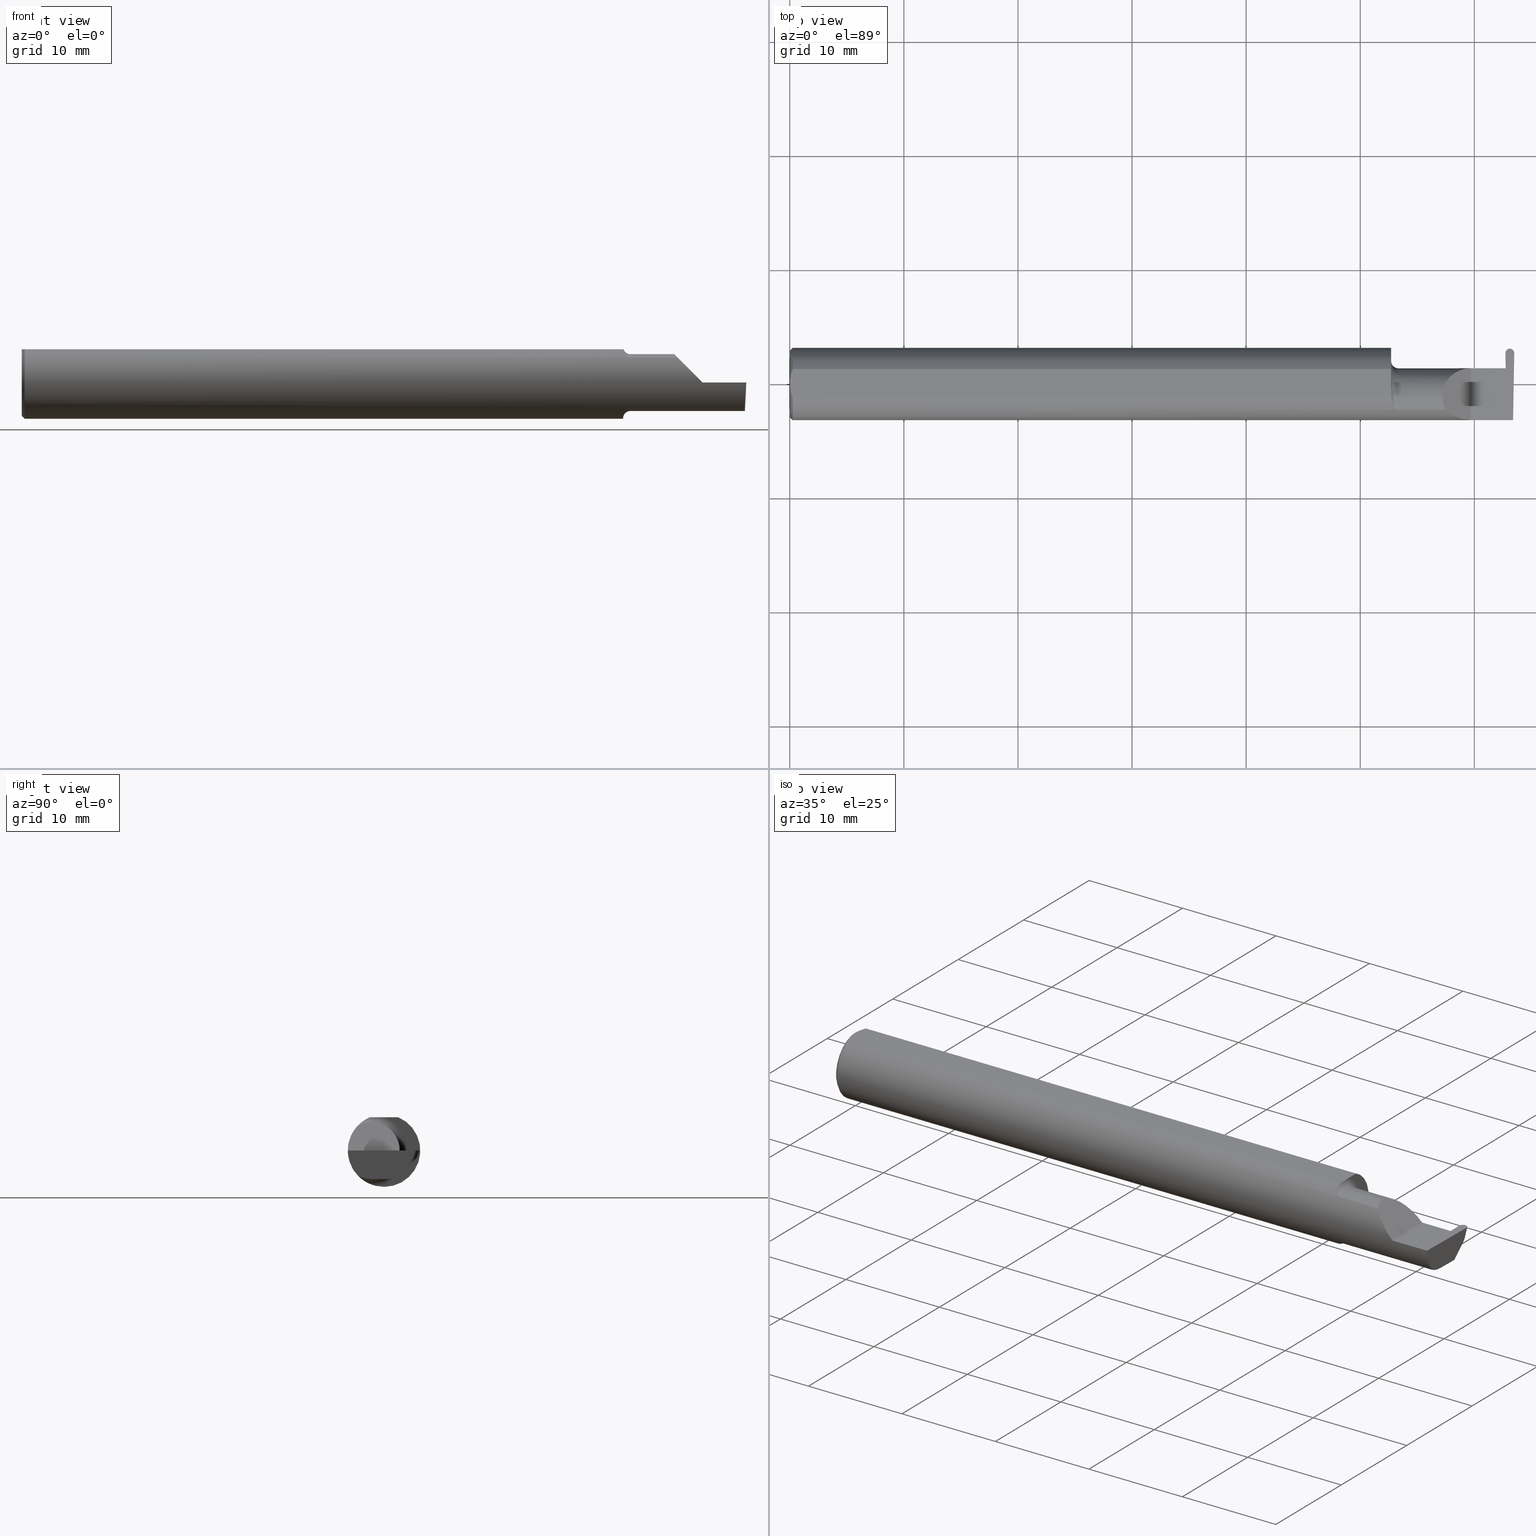
[diagram: canonical four-view strip — front | top / right | iso, engineering-drawing reading convention]
A machine part, canonical four-view strip (front | top / right | iso — engineering-drawing reading convention). The complete STEP part file that produces these views, byte-faithful:
ISO-10303-21;
HEADER;
FILE_DESCRIPTION (( 'STEP AP203' ),
    '1' );
FILE_NAME ('221939-GFR030Q-6.STEP',
    '2024-06-17T21:10:29',
    ( '' ),
    ( '' ),
    'SwSTEP 2.0',
    'SolidWorks 2022',
    '' );
FILE_SCHEMA (( 'CONFIG_CONTROL_DESIGN' ));
ENDSEC;

DATA;
#1 = DIRECTION ( 'NONE',  ( -0.03549161113179501170, 0.03487750912278164694, 0.9987611851171729338 ) ) ;
#2 = ADVANCED_FACE ( 'NONE', ( #333 ), #28, .F. ) ;
#3 = COORDINATED_UNIVERSAL_TIME_OFFSET ( 8, 0, .BEHIND. ) ;
#4 = CARTESIAN_POINT ( 'NONE',  ( 2.100000000000000089, -0.04400000000000003908, -0.09800000000000005929 ) ) ;
#5 = ADVANCED_FACE ( 'NONE', ( #604 ), #229, .T. ) ;
#6 = CARTESIAN_POINT ( 'NONE',  ( 2.494002844043214928, -0.04088583791737589873, -0.09800000000000001765 ) ) ;
#7 = CARTESIAN_POINT ( 'NONE',  ( 0.000000000000000000, 3.414809992080329023E-17, 0.1149999999999999217 ) ) ;
#8 = CARTESIAN_POINT ( 'NONE',  ( 0.01000000000000042348, 0.04898979485566374442, 0.1149999999999999217 ) ) ;
#9 = AXIS2_PLACEMENT_3D ( 'NONE', #790, #211, #120 ) ;
#10 = CIRCLE ( 'NONE', #514, 0.1250000000000000000 ) ;
#11 = EDGE_CURVE ( 'NONE', #380, #381, #247, .T. ) ;
#12 =( BOUNDED_CURVE ( )  B_SPLINE_CURVE ( 3, ( #101, #664, #113, #725 ),
 .UNSPECIFIED., .F., .F. ) 
 B_SPLINE_CURVE_WITH_KNOTS ( ( 4, 4 ),
 ( 3.176499238629679756, 4.677482395344803479 ),
 .UNSPECIFIED. ) 
 CURVE ( )  GEOMETRIC_REPRESENTATION_ITEM ( )  RATIONAL_B_SPLINE_CURVE ( ( 1.000000000000000000, 0.8209024677461134178, 0.8209024677461134178, 1.000000000000000000 ) ) 
 REPRESENTATION_ITEM ( '' )  );
#13 = EDGE_CURVE ( 'NONE', #449, #602, #21, .T. ) ;
#14 = EDGE_LOOP ( 'NONE', ( #770, #51, #170, #79 ) ) ;
#15 = DIRECTION ( 'NONE',  ( 0.03490480639812536257, 0.000000000000000000, 0.9993906415863165194 ) ) ;
#16 = PRODUCT_DEFINITION ( 'UNKNOWN', '', #515, #641 ) ;
#17 =( BOUNDED_CURVE ( )  B_SPLINE_CURVE ( 3, ( #279, #786, #618, #669 ),
 .UNSPECIFIED., .F., .T. ) 
 B_SPLINE_CURVE_WITH_KNOTS ( ( 4, 4 ),
 ( 4.712388980384689674, 5.474523801125206646 ),
 .UNSPECIFIED. ) 
 CURVE ( )  GEOMETRIC_REPRESENTATION_ITEM ( )  RATIONAL_B_SPLINE_CURVE ( ( 1.000000000000000000, 0.9521787881681383903, 0.9521787881681383903, 1.000000000000000000 ) ) 
 REPRESENTATION_ITEM ( '' )  );
#18 = DIRECTION ( 'NONE',  ( -0.03867711768363032293, -0.3253245514560478280, -0.9448111011136606230 ) ) ;
#19 = CARTESIAN_POINT ( 'NONE',  ( 2.484878586598046724, 0.1219999999999999835, 0.000000000000000000 ) ) ;
#20 = ORIENTED_EDGE ( 'NONE', *, *, #484, .T. ) ;
#21 = CIRCLE ( 'NONE', #656, 0.1230000000000000121 ) ;
#22 = VECTOR ( 'NONE', #715, 39.37007874015748854 ) ;
#23 = AXIS2_PLACEMENT_3D ( 'NONE', #327, #538, #591 ) ;
#24 = CARTESIAN_POINT ( 'NONE',  ( 2.076314561435346207, -0.04400000000000004602, 0.1149999999999999217 ) ) ;
#25 = ORIENTED_EDGE ( 'NONE', *, *, #378, .F. ) ;
#26 = EDGE_CURVE ( 'NONE', #402, #323, #456, .T. ) ;
#27 = PLANE ( 'NONE',  #814 ) ;
#28 = PLANE ( 'NONE',  #414 ) ;
#29 = DIRECTION ( 'NONE',  ( 0.000000000000000000, 0.000000000000000000, -1.000000000000000000 ) ) ;
#30 = ORIENTED_EDGE ( 'NONE', *, *, #398, .F. ) ;
#31 = DIRECTION ( 'NONE',  ( -1.000000000000000000, -0.000000000000000000, -0.000000000000000000 ) ) ;
#32 = LINE ( 'NONE', #174, #417 ) ;
#33 = ORIENTED_EDGE ( 'NONE', *, *, #73, .T. ) ;
#34 = CARTESIAN_POINT ( 'NONE',  ( 2.493664221452986052, -0.06028551311893198816, -0.09800000000000005929 ) ) ;
#35 = FACE_OUTER_BOUND ( 'NONE', #468, .T. ) ;
#36 = ORIENTED_EDGE ( 'NONE', *, *, #568, .T. ) ;
#37 = AXIS2_PLACEMENT_3D ( 'NONE', #627, #285, #698 ) ;
#38 = CARTESIAN_POINT ( 'NONE',  ( 2.498714643955449066, 0.1028225311217316196, -0.03491360615931652506 ) ) ;
#39 = CIRCLE ( 'NONE', #275, 0.09800000000000005929 ) ;
#40 = CARTESIAN_POINT ( 'NONE',  ( 2.469318218598223424, 0.1152528334169432428, 1.896935457484700715E-17 ) ) ;
#41 = ORIENTED_EDGE ( 'NONE', *, *, #521, .T. ) ;
#42 = VERTEX_POINT ( 'NONE', #165 ) ;
#43 = DIRECTION ( 'NONE',  ( -1.000000000000000000, -0.000000000000000000, -0.000000000000000000 ) ) ;
#44 = PRODUCT_DEFINITION_SHAPE ( 'NONE', 'NONE',  #16 ) ;
#45 = LENGTH_MEASURE_WITH_UNIT ( LENGTH_MEASURE( 0.02539999999999999897 ), #222 );
#46 = ORIENTED_EDGE ( 'NONE', *, *, #776, .F. ) ;
#47 = CARTESIAN_POINT ( 'NONE',  ( 2.090850385411617385, -0.08673035960621020002, -0.09003514189954212044 ) ) ;
#48 = CARTESIAN_POINT ( 'NONE',  ( 2.075000000000000178, -0.02763636363636362211, -0.1219066503721543265 ) ) ;
#49 = CARTESIAN_POINT ( 'NONE',  ( 2.484590643401953791, 0.1219999999999999835, 0.000000000000000000 ) ) ;
#50 = PLANE ( 'NONE',  #330 ) ;
#51 = ORIENTED_EDGE ( 'NONE', *, *, #443, .F. ) ;
#52 = DIRECTION ( 'NONE',  ( -1.000000000000000000, -0.000000000000000000, -0.000000000000000000 ) ) ;
#53 = AXIS2_PLACEMENT_3D ( 'NONE', #650, #754, #705 ) ;
#54 = ORGANIZATION ( 'UNSPECIFIED', 'UNSPECIFIED', '' ) ;
#55 = APPLICATION_PROTOCOL_DEFINITION ( 'international standard', 'config_control_design', 1994, #336 ) ;
#56 = LINE ( 'NONE', #806, #358 ) ;
#57 = ADVANCED_FACE ( 'NONE', ( #626 ), #143, .F. ) ;
#58 = VERTEX_POINT ( 'NONE', #413 ) ;
#59 = CARTESIAN_POINT ( 'NONE',  ( 2.089282510427138195, -0.08510692115743005715, -0.09158169095606863430 ) ) ;
#60 = DIRECTION ( 'NONE',  ( 1.000000000000000000, -0.000000000000000000, -0.000000000000000000 ) ) ;
#61 = ORIENTED_EDGE ( 'NONE', *, *, #649, .F. ) ;
#62 = CARTESIAN_POINT ( 'NONE',  ( 2.292592929112562405, 0.05399999999999999245, 0.05740707088743673275 ) ) ;
#63 = ADVANCED_FACE ( 'NONE', ( #808 ), #177, .F. ) ;
#64 = CIRCLE ( 'NONE', #429, 0.1250000000000000000 ) ;
#65 = COORDINATED_UNIVERSAL_TIME_OFFSET ( 8, 0, .BEHIND. ) ;
#66 = VECTOR ( 'NONE', #444, 39.37007874015748143 ) ;
#67 = DIRECTION ( 'NONE',  ( 0.000000000000000000, 0.9455185755993167351, -0.3255681544571566999 ) ) ;
#68 = CYLINDRICAL_SURFACE ( 'NONE', #571, 0.01529999999999999763 ) ;
#69 = CARTESIAN_POINT ( 'NONE',  ( 2.497986945264153213, 0.08893015498921681694, -0.04880598229183145953 ) ) ;
#70 = ORIENTED_EDGE ( 'NONE', *, *, #287, .F. ) ;
#71 = LINE ( 'NONE', #634, #103 ) ;
#72 = ORIENTED_EDGE ( 'NONE', *, *, #504, .T. ) ;
#73 = EDGE_CURVE ( 'NONE', #323, #227, #425, .T. ) ;
#74 = CARTESIAN_POINT ( 'NONE',  ( 2.075000000000000178, 0.04898979485566374442, 0.1149999999999999217 ) ) ;
#75 = VERTEX_POINT ( 'NONE', #673 ) ;
#76 = ORIENTED_EDGE ( 'NONE', *, *, #199, .F. ) ;
#77 = EDGE_CURVE ( 'NONE', #620, #597, #107, .T. ) ;
#78 = DIRECTION ( 'NONE',  ( 0.000000000000000000, 0.000000000000000000, -1.000000000000000000 ) ) ;
#79 = ORIENTED_EDGE ( 'NONE', *, *, #98, .F. ) ;
#80 = ORIENTED_EDGE ( 'NONE', *, *, #347, .F. ) ;
#81 = CARTESIAN_POINT ( 'NONE',  ( 2.481161349538949068, 0.09073323165395930090, -0.09080528874034131392 ) ) ;
#82 = CARTESIAN_POINT ( 'NONE',  ( 2.484590643401953791, 0.1219999999999999835, 0.000000000000000000 ) ) ;
#83 = ORIENTED_EDGE ( 'NONE', *, *, #462, .T. ) ;
#84 = ORIENTED_EDGE ( 'NONE', *, *, #329, .T. ) ;
#85 = ADVANCED_FACE ( 'NONE', ( #215 ), #233, .T. ) ;
#86 = LINE ( 'NONE', #517, #645 ) ;
#87 = AXIS2_PLACEMENT_3D ( 'NONE', #436, #185, #440 ) ;
#88 = VECTOR ( 'NONE', #472, 39.37007874015748143 ) ;
#89 = DIRECTION ( 'NONE',  ( 1.000000000000000000, 0.000000000000000000, -0.000000000000000000 ) ) ;
#90 = ORIENTED_EDGE ( 'NONE', *, *, #372, .F. ) ;
#91 = ORIENTED_EDGE ( 'NONE', *, *, #693, .F. ) ;
#92 = FACE_OUTER_BOUND ( 'NONE', #613, .T. ) ;
#93 = ORIENTED_EDGE ( 'NONE', *, *, #693, .T. ) ;
#94 =( BOUNDED_CURVE ( )  B_SPLINE_CURVE ( 3, ( #335, #164, #269, #660 ),
 .UNSPECIFIED., .F., .F. ) 
 B_SPLINE_CURVE_WITH_KNOTS ( ( 4, 4 ),
 ( 5.789722842198295361, 6.283185307179586232 ),
 .UNSPECIFIED. ) 
 CURVE ( )  GEOMETRIC_REPRESENTATION_ITEM ( )  RATIONAL_B_SPLINE_CURVE ( ( 1.000000000000000000, 0.9798106333074687591, 0.9798106333074687591, 1.000000000000000000 ) ) 
 REPRESENTATION_ITEM ( '' )  );
#95 = PERSON_AND_ORGANIZATION_ROLE ( 'design_owner' ) ;
#96 = DIRECTION ( 'NONE',  ( 0.000000000000000000, 0.000000000000000000, 1.000000000000000000 ) ) ;
#97 = VERTEX_POINT ( 'NONE', #614 ) ;
#98 = EDGE_CURVE ( 'NONE', #410, #253, #610, .T. ) ;
#99 = CARTESIAN_POINT ( 'NONE',  ( 2.672413070268786939, -0.04400000000000004602, -0.09800000000000001765 ) ) ;
#100 = CARTESIAN_POINT ( 'NONE',  ( 2.475584878715684667, 0.1219999999999998308, 1.820191004942760528E-17 ) ) ;
#101 = CARTESIAN_POINT ( 'NONE',  ( 2.473987104431409012, -0.04400000000000004602, -0.09800000000000003153 ) ) ;
#102 = EDGE_LOOP ( 'NONE', ( #397, #187, #46, #324, #651, #266, #803, #692 ) ) ;
#103 = VECTOR ( 'NONE', #250, 39.37007874015748854 ) ;
#104 = CARTESIAN_POINT ( 'NONE',  ( 2.484734615000000257, 0.1160674915816082287, -0.01720563969773457325 ) ) ;
#105 = VERTEX_POINT ( 'NONE', #738 ) ;
#106 = APPROVAL_PERSON_ORGANIZATION ( #367, #384, #431 ) ;
#107 = LINE ( 'NONE', #487, #771 ) ;
#108 = PLANE ( 'NONE',  #145 ) ;
#109 = ORIENTED_EDGE ( 'NONE', *, *, #732, .F. ) ;
#110 = CARTESIAN_POINT ( 'NONE',  ( 2.493948486141865484, -0.04400000000000004602, -0.09800000000000001765 ) ) ;
#111 = ORIENTED_EDGE ( 'NONE', *, *, #257, .F. ) ;
#112 = DIRECTION ( 'NONE',  ( -0.001239419280281402755, 0.9999992319196288060, 0.000000000000000000 ) ) ;
#113 = CARTESIAN_POINT ( 'NONE',  ( 2.472556783207862097, 0.04997501107658562647, -0.06098225869090272144 ) ) ;
#114 = EDGE_LOOP ( 'NONE', ( #353, #647, #655, #473 ) ) ;
#115 = CARTESIAN_POINT ( 'NONE',  ( 2.076314561435346651, -0.04483155449656758829, 0.1149999999999999356 ) ) ;
#116 = EDGE_CURVE ( 'NONE', #270, #708, #360, .T. ) ;
#117 = MECHANICAL_CONTEXT ( 'NONE', #447, 'mechanical' ) ;
#118 = CARTESIAN_POINT ( 'NONE',  ( 2.473883320168691835, 0.03973613728104883475, -0.09800000000000000377 ) ) ;
#119 = ORIENTED_EDGE ( 'NONE', *, *, #457, .T. ) ;
#120 = DIRECTION ( 'NONE',  ( 0.03547001781079529847, 0.000000000000000000, -0.9993707409347653003 ) ) ;
#121 = AXIS2_PLACEMENT_3D ( 'NONE', #460, #214, #721 ) ;
#122 = COORDINATED_UNIVERSAL_TIME_OFFSET ( 8, 0, .BEHIND. ) ;
#123 = ORIENTED_EDGE ( 'NONE', *, *, #426, .T. ) ;
#124 = CARTESIAN_POINT ( 'NONE',  ( 2.493976598891079810, -0.1128945894460737925, -0.06276352435079116110 ) ) ;
#125 = DATE_AND_TIME ( #134, #701 ) ;
#126 = EDGE_CURVE ( 'NONE', #708, #75, #714, .T. ) ;
#127 = CARTESIAN_POINT ( 'NONE',  ( 0.006956794985978487743, -0.04122489957750442163, 0.1149999999999999356 ) ) ;
#128 = CARTESIAN_POINT ( 'NONE',  ( 2.484734615000000257, 0.1136989410075409934, -0.02403719627350702631 ) ) ;
#129 = CARTESIAN_POINT ( 'NONE',  ( 2.075234743326752174, -0.03866586649758528560, -0.1190059989239850985 ) ) ;
#130 = VECTOR ( 'NONE', #527, 39.37007874015748143 ) ;
#131 = DATE_AND_TIME ( #630, #633 ) ;
#132 = FACE_OUTER_BOUND ( 'NONE', #713, .T. ) ;
#133 = LINE ( 'NONE', #312, #592 ) ;
#134 = CALENDAR_DATE ( 2024, 17, 6 ) ;
#135 = CARTESIAN_POINT ( 'NONE',  ( 2.471482284735846413, 0.08893015498921685857, -0.04880598229183143177 ) ) ;
#136 = EDGE_LOOP ( 'NONE', ( #176, #163, #599 ) ) ;
#137 = VERTEX_POINT ( 'NONE', #621 ) ;
#138 = EDGE_CURVE ( 'NONE', #760, #381, #666, .T. ) ;
#139 = CARTESIAN_POINT ( 'NONE',  ( 2.075000000000000178, -0.04400000000000004602, 0.09800000000000005929 ) ) ;
#140 = LINE ( 'NONE', #711, #130 ) ;
#141 = ORIENTED_EDGE ( 'NONE', *, *, #677, .F. ) ;
#142 = VERTEX_POINT ( 'NONE', #135 ) ;
#143 = TOROIDAL_SURFACE ( 'NONE', #328, 0.1230000000000000121, 0.02499999999999994588 ) ;
#144 = VECTOR ( 'NONE', #465, 39.37007874015748854 ) ;
#145 = AXIS2_PLACEMENT_3D ( 'NONE', #162, #546, #542 ) ;
#146 = ORIENTED_EDGE ( 'NONE', *, *, #709, .F. ) ;
#147 = ORIENTED_EDGE ( 'NONE', *, *, #582, .T. ) ;
#148 = LINE ( 'NONE', #789, #88 ) ;
#149 = VERTEX_POINT ( 'NONE', #375 ) ;
#150 = CARTESIAN_POINT ( 'NONE',  ( 2.493546555653489705, -0.09042045454545437344, -0.08630840862739515285 ) ) ;
#151 = CARTESIAN_POINT ( 'NONE',  ( 2.075000000000000178, -0.007643795319155048847, 0.1149999999999999356 ) ) ;
#152 = VERTEX_POINT ( 'NONE', #503 ) ;
#153 = TOROIDAL_SURFACE ( 'NONE', #399, 0.1230000000000000121, 0.02499999999999994588 ) ;
#154 = SECURITY_CLASSIFICATION ( '', '', #305 ) ;
#155 = LINE ( 'NONE', #544, #316 ) ;
#156 = EDGE_CURVE ( 'NONE', #449, #520, #249, .T. ) ;
#157 = EDGE_CURVE ( 'NONE', #270, #486, #795, .T. ) ;
#158 = DIRECTION ( 'NONE',  ( 1.000000000000000000, 0.000000000000000000, 0.000000000000000000 ) ) ;
#159 = DIRECTION ( 'NONE',  ( -0.000000000000000000, 1.000000000000000000, 1.224646799147353207E-16 ) ) ;
#160 = VERTEX_POINT ( 'NONE', #772 ) ;
#161 = CARTESIAN_POINT ( 'NONE',  ( 2.076314561435346207, -0.03672135622230198598, 0.1149999999999999356 ) ) ;
#162 = CARTESIAN_POINT ( 'NONE',  ( 2.470387390782552650, 0.05399999999999999245, 0.000000000000000000 ) ) ;
#163 = ORIENTED_EDGE ( 'NONE', *, *, #540, .T. ) ;
#164 = CARTESIAN_POINT ( 'NONE',  ( 2.255977500337024377, -0.07607783494366275601, 0.09402249966297451800 ) ) ;
#165 = CARTESIAN_POINT ( 'NONE',  ( 2.076314561435346207, -0.04400000000000004602, 0.1149999999999999217 ) ) ;
#166 = DIRECTION ( 'NONE',  ( 1.000000000000000000, 0.000000000000000000, 0.000000000000000000 ) ) ;
#167 = AXIS2_PLACEMENT_3D ( 'NONE', #576, #242, #510 ) ;
#168 = CARTESIAN_POINT ( 'NONE',  ( 2.100000000000000089, -0.09042045454545434569, -0.08630840862739518060 ) ) ;
#169 = CARTESIAN_POINT ( 'NONE',  ( 0.000000000000000000, 3.414809992080329023E-17, 0.1149999999999999217 ) ) ;
#170 = ORIENTED_EDGE ( 'NONE', *, *, #172, .F. ) ;
#171 = CARTESIAN_POINT ( 'NONE',  ( 2.080023755285531184, -0.06757875350159907313, -0.1052824340695055344 ) ) ;
#172 = EDGE_CURVE ( 'NONE', #253, #194, #733, .T. ) ;
#173 = CARTESIAN_POINT ( 'NONE',  ( 2.075000000000000178, -0.0003651515414569473403, 0.1149999999999999217 ) ) ;
#174 = CARTESIAN_POINT ( 'NONE',  ( 2.075000000000000178, 0.05399999999999999245, 5.204748896376245769E-17 ) ) ;
#175 = ORIENTED_EDGE ( 'NONE', *, *, #678, .F. ) ;
#176 = ORIENTED_EDGE ( 'NONE', *, *, #750, .T. ) ;
#177 = PLANE ( 'NONE',  #9 ) ;
#178 = ORIENTED_EDGE ( 'NONE', *, *, #282, .F. ) ;
#179 = CARTESIAN_POINT ( 'NONE',  ( 2.470754586044551893, 0.1028225311217312310, -0.03491360615931689282 ) ) ;
#180 = DIRECTION ( 'NONE',  ( 0.000000000000000000, 0.000000000000000000, 1.000000000000000000 ) ) ;
#181 = DIRECTION ( 'NONE',  ( -0.01745240643727679480, -0.9998476951563912696, 0.000000000000000000 ) ) ;
#182 = EDGE_CURVE ( 'NONE', #597, #533, #17, .T. ) ;
#183 = DATE_AND_TIME ( #748, #658 ) ;
#184 = CARTESIAN_POINT ( 'NONE',  ( 2.091446811421614704, -0.08721672169480992887, 0.08955973280240364653 ) ) ;
#185 = DIRECTION ( 'NONE',  ( 1.000000000000000000, 0.000000000000000000, 0.000000000000000000 ) ) ;
#186 = FACE_OUTER_BOUND ( 'NONE', #136, .T. ) ;
#187 = ORIENTED_EDGE ( 'NONE', *, *, #218, .T. ) ;
#188 = APPROVAL_STATUS ( 'not_yet_approved' ) ;
#189 = APPROVAL_PERSON_ORGANIZATION ( #433, #807, #563 ) ;
#190 = CARTESIAN_POINT ( 'NONE',  ( 0.004414142251465132810, -0.03315347577847933824, 0.1149999999999999356 ) ) ;
#191 = ADVANCED_FACE ( 'NONE', ( #446 ), #259, .F. ) ;
#192 = CARTESIAN_POINT ( 'NONE',  ( 2.495410105854944049, 0.03973613728104880005, -0.09800000000000001765 ) ) ;
#193 = EDGE_CURVE ( 'NONE', #410, #160, #12, .T. ) ;
#194 = VERTEX_POINT ( 'NONE', #607 ) ;
#195 = EDGE_LOOP ( 'NONE', ( #393, #717, #175, #488, #388 ) ) ;
#196 = DIRECTION ( 'NONE',  ( -0.03867711768362944169, 0.3253245514560478280, 0.9448111011136606230 ) ) ;
#197 = ORIENTED_EDGE ( 'NONE', *, *, #11, .T. ) ;
#198 = CC_DESIGN_APPROVAL ( #396, ( #154 ) ) ;
#199 = EDGE_CURVE ( 'NONE', #75, #320, #382, .T. ) ;
#200 = CARTESIAN_POINT ( 'NONE',  ( 2.100000000000000089, -0.09042045454545434569, 0.08630840862739518060 ) ) ;
#201 = EDGE_LOOP ( 'NONE', ( #493, #30, #676, #781, #442 ) ) ;
#202 = FACE_OUTER_BOUND ( 'NONE', #319, .T. ) ;
#203 = DIMENSIONAL_EXPONENTS ( 1.000000000000000000, 0.000000000000000000, 0.000000000000000000, 0.000000000000000000, 0.000000000000000000, 0.000000000000000000, 0.000000000000000000 ) ;
#204 = PLANE ( 'NONE',  #463 ) ;
#205 = ORIENTED_EDGE ( 'NONE', *, *, #504, .F. ) ;
#206 = CC_DESIGN_SECURITY_CLASSIFICATION ( #154, ( #515 ) ) ;
#207 = CARTESIAN_POINT ( 'NONE',  ( 2.075000000000000178, -0.02763636363636362211, -0.1219066503721543265 ) ) ;
#208 = CARTESIAN_POINT ( 'NONE',  ( 2.100000000000000089, -0.04400000000000003214, -0.1230000000000000121 ) ) ;
#209 = ORIENTED_EDGE ( 'NONE', *, *, #98, .T. ) ;
#210 = DIRECTION ( 'NONE',  ( 0.000000000000000000, -0.7071067811865435759, -0.7071067811865514585 ) ) ;
#211 = DIRECTION ( 'NONE',  ( 0.9993699743034455407, 0.001238639365660604372, 0.03546999060124687853 ) ) ;
#212 = CARTESIAN_POINT ( 'NONE',  ( 2.499984884025182375, 0.1057354023860208464, 0.000000000000000000 ) ) ;
#213 = ORIENTED_EDGE ( 'NONE', *, *, #116, .T. ) ;
#214 = DIRECTION ( 'NONE',  ( -1.000000000000000000, -0.000000000000000000, -0.000000000000000000 ) ) ;
#215 = FACE_OUTER_BOUND ( 'NONE', #409, .T. ) ;
#216 = ADVANCED_FACE ( 'NONE', ( #404 ), #50, .F. ) ;
#217 = LINE ( 'NONE', #423, #144 ) ;
#218 = EDGE_CURVE ( 'NONE', #410, #320, #470, .T. ) ;
#219 = VECTOR ( 'NONE', #551, 39.37007874015748854 ) ;
#220 = EDGE_LOOP ( 'NONE', ( #418, #197 ) ) ;
#221 = CARTESIAN_POINT ( 'NONE',  ( 0.000000000000000000, 0.000000000000000000, 0.000000000000000000 ) ) ;
#222 =( LENGTH_UNIT ( ) NAMED_UNIT ( * ) SI_UNIT ( $, .METRE. ) );
#223 = CARTESIAN_POINT ( 'NONE',  ( 0.01000000000000042348, 0.04898979485566374442, 0.1149999999999999217 ) ) ;
#224 = VERTEX_POINT ( 'NONE', #601 ) ;
#225 = DIRECTION ( 'NONE',  ( -1.000000000000000000, -0.000000000000000000, -0.000000000000000000 ) ) ;
#226 = COORDINATED_UNIVERSAL_TIME_OFFSET ( 8, 0, .BEHIND. ) ;
#227 = VERTEX_POINT ( 'NONE', #212 ) ;
#228 = DIRECTION ( 'NONE',  ( 0.7071067811865530128, 0.000000000000000000, -0.7071067811865421326 ) ) ;
#229 = CYLINDRICAL_SURFACE ( 'NONE', #700, 0.09800000000000005929 ) ;
#230 = CARTESIAN_POINT ( 'NONE',  ( 2.470387390782552650, 0.05399999999999999245, 0.000000000000000000 ) ) ;
#231 = PERSON_AND_ORGANIZATION_ROLE ( 'design_supplier' ) ;
#232 = LINE ( 'NONE', #6, #448 ) ;
#233 = CONICAL_SURFACE ( 'NONE', #674, 0.1149999999999997274, 0.7853981633974407295 ) ;
#234 = CONICAL_SURFACE ( 'NONE', #87, 0.1149999999999997274, 0.7853981633974407295 ) ;
#235 = CC_DESIGN_PERSON_AND_ORGANIZATION_ASSIGNMENT ( #499, #746, ( #154 ) ) ;
#236 = COORDINATED_UNIVERSAL_TIME_OFFSET ( 8, 0, .BEHIND. ) ;
#237 = ORIENTED_EDGE ( 'NONE', *, *, #649, .T. ) ;
#238 = CARTESIAN_POINT ( 'NONE',  ( 2.481161349538949068, 0.07626679744728975807, -0.08582409597714681093 ) ) ;
#239 = CARTESIAN_POINT ( 'NONE',  ( 2.075730677800976753, -0.04400000000000003908, -0.1169999999999999929 ) ) ;
#240 = PERSON_AND_ORGANIZATION ( #662, #54 ) ;
#241 = LINE ( 'NONE', #432, #415 ) ;
#242 = DIRECTION ( 'NONE',  ( -1.000000000000000000, -0.000000000000000000, -0.000000000000000000 ) ) ;
#243 = DIRECTION ( 'NONE',  ( 0.03867711768362944169, -0.3253245514560478280, -0.9448111011136606230 ) ) ;
#244 = PRODUCT_RELATED_PRODUCT_CATEGORY ( 'detail', '', ( #690 ) ) ;
#245 = ADVANCED_FACE ( 'NONE', ( #349 ), #476, .F. ) ;
#246 = PLANE ( 'NONE',  #53 ) ;
#247 = CIRCLE ( 'NONE', #258, 0.1149999999999997274 ) ;
#248 = CIRCLE ( 'NONE', #167, 0.09800000000000005929 ) ;
#249 = LINE ( 'NONE', #300, #644 ) ;
#250 = DIRECTION ( 'NONE',  ( -0.03549161113179501170, 0.03487750912278164694, 0.9987611851171729338 ) ) ;
#251 = ORIENTED_EDGE ( 'NONE', *, *, #294, .F. ) ;
#252 = ORIENTED_EDGE ( 'NONE', *, *, #778, .F. ) ;
#253 = VERTEX_POINT ( 'NONE', #118 ) ;
#254 =( BOUNDED_CURVE ( )  B_SPLINE_CURVE ( 3, ( #458, #412, #104, #261 ),
 .UNSPECIFIED., .F., .T. ) 
 B_SPLINE_CURVE_WITH_KNOTS ( ( 4, 4 ),
 ( 1.570796326794956510, 1.625706402193329625 ),
 .UNSPECIFIED. ) 
 CURVE ( )  GEOMETRIC_REPRESENTATION_ITEM ( )  RATIONAL_B_SPLINE_CURVE ( ( 1.000000000000000000, 0.9997487560841078480, 0.9997487560841078480, 1.000000000000000000 ) ) 
 REPRESENTATION_ITEM ( '' )  );
#255 = EDGE_CURVE ( 'NONE', #288, #505, #64, .T. ) ;
#256 = CARTESIAN_POINT ( 'NONE',  ( 2.100000000000000089, -0.04400000000000004602, 0.1230000000000000121 ) ) ;
#257 = EDGE_CURVE ( 'NONE', #227, #620, #675, .T. ) ;
#258 = AXIS2_PLACEMENT_3D ( 'NONE', #430, #52, #474 ) ;
#259 = TOROIDAL_SURFACE ( 'NONE', #273, 0.1230000000000000121, 0.02499999999999994588 ) ;
#260 = APPROVAL_PERSON_ORGANIZATION ( #240, #396, #569 ) ;
#261 = CARTESIAN_POINT ( 'NONE',  ( 2.484734615000000257, 0.1136989410075409934, -0.02403719627350702631 ) ) ;
#262 = B_SPLINE_CURVE_WITH_KNOTS ( 'NONE', 3,
 ( #169, #420, #679, #223 ),
 .UNSPECIFIED., .F., .F.,
 ( 4, 4 ),
 ( 0.002331518380383306322, 0.003601362264757408584 ),
 .UNSPECIFIED. ) ;
#263 = LINE ( 'NONE', #139, #383 ) ;
#264 = EDGE_CURVE ( 'NONE', #194, #142, #217, .T. ) ;
#265 = PLANE ( 'NONE',  #558 ) ;
#266 = ORIENTED_EDGE ( 'NONE', *, *, #778, .T. ) ;
#267 = CARTESIAN_POINT ( 'NONE',  ( 2.075000000000000178, -0.04400000000000003908, -0.09800000000000005929 ) ) ;
#268 = ORIENTED_EDGE ( 'NONE', *, *, #157, .T. ) ;
#269 = CARTESIAN_POINT ( 'NONE',  ( 2.251999999999998892, -0.06028551311893200898, 0.09800000000000005929 ) ) ;
#270 = VERTEX_POINT ( 'NONE', #481 ) ;
#271 = DIRECTION ( 'NONE',  ( 1.000000000000000000, 0.000000000000000000, 0.000000000000000000 ) ) ;
#272 = DIRECTION ( 'NONE',  ( -1.000000000000000000, -0.000000000000000000, -0.000000000000000000 ) ) ;
#273 = AXIS2_PLACEMENT_3D ( 'NONE', #343, #408, #489 ) ;
#274 = ORIENTED_EDGE ( 'NONE', *, *, #625, .F. ) ;
#275 = AXIS2_PLACEMENT_3D ( 'NONE', #735, #622, #801 ) ;
#276 = CARTESIAN_POINT ( 'NONE',  ( 2.753179778023443269, 0.1250000000000000278, 0.1149999999999999217 ) ) ;
#277 = DIRECTION ( 'NONE',  ( 0.000000000000000000, 0.000000000000000000, 1.000000000000000000 ) ) ;
#278 =( CONVERSION_BASED_UNIT ( 'INCH', #45 ) LENGTH_UNIT ( ) NAMED_UNIT ( #203 ) );
#279 = CARTESIAN_POINT ( 'NONE',  ( 2.350000000000000089, -0.1250000000000000278, 1.836970198721028825E-17 ) ) ;
#280 = DIRECTION ( 'NONE',  ( -1.000000000000000000, -0.000000000000000000, -0.000000000000000000 ) ) ;
#281 = CARTESIAN_POINT ( 'NONE',  ( 2.094768270659623788, -0.08937924045984939336, -0.08740614068309870976 ) ) ;
#282 = EDGE_CURVE ( 'NONE', #602, #520, #10, .T. ) ;
#283 = ORIENTED_EDGE ( 'NONE', *, *, #310, .T. ) ;
#284 = CARTESIAN_POINT ( 'NONE',  ( 2.469471554992074935, 0.1064681972965584728, 0.000000000000000000 ) ) ;
#285 = DIRECTION ( 'NONE',  ( -1.000000000000000000, -0.000000000000000000, -0.000000000000000000 ) ) ;
#286 = DIRECTION ( 'NONE',  ( -1.000000000000000000, 0.000000000000000000, 1.224646799147352468E-16 ) ) ;
#287 = EDGE_CURVE ( 'NONE', #381, #505, #262, .T. ) ;
#288 = VERTEX_POINT ( 'NONE', #684 ) ;
#289 = VECTOR ( 'NONE', #631, 39.37007874015748143 ) ;
#290 = DIRECTION ( 'NONE',  ( -1.000000000000000000, -0.000000000000000000, -0.000000000000000000 ) ) ;
#291 = CARTESIAN_POINT ( 'NONE',  ( 2.076290282237983398, -0.04815824740011447752, 0.1149999999999999356 ) ) ;
#292 = ORIENTED_EDGE ( 'NONE', *, *, #77, .T. ) ;
#293 = CARTESIAN_POINT ( 'NONE',  ( 2.476165970691971197, 0.1129364828361198586, -0.02479965444492819235 ) ) ;
#294 = EDGE_CURVE ( 'NONE', #152, #137, #498, .T. ) ;
#295 = CARTESIAN_POINT ( 'NONE',  ( 2.078809610961340315, -0.06315583524588902486, -0.1079992965090798424 ) ) ;
#296 = FACE_OUTER_BOUND ( 'NONE', #737, .T. ) ;
#297 = PERSON_AND_ORGANIZATION_ROLE ( 'creator' ) ;
#298 = ORIENTED_EDGE ( 'NONE', *, *, #372, .T. ) ;
#299 = CARTESIAN_POINT ( 'NONE',  ( 2.089945076695560289, -0.08578123596784995031, 0.09094459933477699876 ) ) ;
#300 = CARTESIAN_POINT ( 'NONE',  ( 2.075000000000000178, 0.1250000000000000278, 0.1149999999999999217 ) ) ;
#301 = CYLINDRICAL_SURFACE ( 'NONE', #501, 0.01529999999999999763 ) ;
#302 = VECTOR ( 'NONE', #196, 39.37007874015748854 ) ;
#303 = VECTOR ( 'NONE', #31, 39.37007874015748143 ) ;
#304 = CARTESIAN_POINT ( 'NONE',  ( 2.464200446367434516, 0.05399999999999999245, 0.000000000000000000 ) ) ;
#305 = SECURITY_CLASSIFICATION_LEVEL ( 'unclassified' ) ;
#306 = LINE ( 'NONE', #752, #369 ) ;
#307 = DIRECTION ( 'NONE',  ( 0.000000000000000000, -0.9455185755993167351, 0.3255681544571566999 ) ) ;
#308 = APPROVAL_DATE_TIME ( #691, #384 ) ;
#309 = CARTESIAN_POINT ( 'NONE',  ( 2.076278290187155484, -0.04898979485567048209, 0.1149999999999999217 ) ) ;
#310 = EDGE_CURVE ( 'NONE', #270, #620, #722, .T. ) ;
#311 = FACE_OUTER_BOUND ( 'NONE', #392, .T. ) ;
#312 = CARTESIAN_POINT ( 'NONE',  ( -3.937007874019685528E-05, 0.03973613728104881393, -0.09800000000000001765 ) ) ;
#313 = ORIENTED_EDGE ( 'NONE', *, *, #329, .F. ) ;
#314 = UNCERTAINTY_MEASURE_WITH_UNIT (LENGTH_MEASURE( 1.000000000000000082E-05 ), #278, 'distance_accuracy_value', 'NONE');
#315 = VECTOR ( 'NONE', #43, 39.37007874015748143 ) ;
#316 = VECTOR ( 'NONE', #401, 39.37007874015748143 ) ;
#317 = EDGE_CURVE ( 'NONE', #142, #402, #718, .T. ) ;
#318 = CARTESIAN_POINT ( 'NONE',  ( 2.500151011401777534, 0.1152528334169432289, -1.895304614445360883E-18 ) ) ;
#319 = EDGE_LOOP ( 'NONE', ( #671, #209, #41, #537 ) ) ;
#320 = VERTEX_POINT ( 'NONE', #4 ) ;
#321 = CARTESIAN_POINT ( 'NONE',  ( 2.672413070268786939, -0.04400000000000004602, -0.09800000000000001765 ) ) ;
#322 = CARTESIAN_POINT ( 'NONE',  ( 2.493884351284315848, 0.1219999999999998030, -1.127860089025957857E-18 ) ) ;
#323 = VERTEX_POINT ( 'NONE', #69 ) ;
#324 = ORIENTED_EDGE ( 'NONE', *, *, #753, .F. ) ;
#325 = CARTESIAN_POINT ( 'NONE',  ( 0.01000000000000042348, -0.04898979485566374442, 0.1149999999999999217 ) ) ;
#326 = B_SPLINE_CURVE_WITH_KNOTS ( 'NONE', 3,
 ( #389, #454, #809, #304 ),
 .UNSPECIFIED., .F., .F.,
 ( 4, 4 ),
 ( 0.000000000000000000, 1.000000000000000000 ),
 .UNSPECIFIED. ) ;
#327 = CARTESIAN_POINT ( 'NONE',  ( 2.350000000000000089, -0.2500000000000000555, 1.836970198721028825E-17 ) ) ;
#328 = AXIS2_PLACEMENT_3D ( 'NONE', #565, #804, #277 ) ;
#329 = EDGE_CURVE ( 'NONE', #105, #224, #241, .T. ) ;
#330 = AXIS2_PLACEMENT_3D ( 'NONE', #547, #352, #792 ) ;
#331 = AXIS2_PLACEMENT_3D ( 'NONE', #464, #724, #158 ) ;
#332 = CARTESIAN_POINT ( 'NONE',  ( 0.000000000000000000, 0.04898979485566374442, 0.1149999999999999217 ) ) ;
#333 = FACE_OUTER_BOUND ( 'NONE', #728, .T. ) ;
#334 = ORIENTED_EDGE ( 'NONE', *, *, #218, .F. ) ;
#335 = CARTESIAN_POINT ( 'NONE',  ( 2.263691591372603895, -0.09042045454545441507, 0.08630840862739512509 ) ) ;
#336 = APPLICATION_CONTEXT ( 'configuration controlled 3d designs of mechanical parts and assemblies' ) ;
#337 = B_SPLINE_CURVE_WITH_KNOTS ( 'NONE', 3,
 ( #309, #428, #749, #687, #500, #299, #184, #699, #815, #624 ),
 .UNSPECIFIED., .F., .F.,
 ( 4, 2, 2, 2, 4 ),
 ( 5.067393987362344038E-07, 0.0007430328995925329768, 0.001114295979689431315, 0.001299927519737886176, 0.001485559059786341254 ),
 .UNSPECIFIED. ) ;
#338 = ORIENTED_EDGE ( 'NONE', *, *, #462, .F. ) ;
#339 = DIRECTION ( 'NONE',  ( 0.000000000000000000, 0.000000000000000000, 1.000000000000000000 ) ) ;
#340 = CARTESIAN_POINT ( 'NONE',  ( 2.493303259308029318, 0.1129364828361203443, -0.02479965444492767193 ) ) ;
#341 = CARTESIAN_POINT ( 'NONE',  ( 0.01000000000000042348, 0.000000000000000000, 0.000000000000000000 ) ) ;
#342 = AXIS2_PLACEMENT_3D ( 'NONE', #731, #416, #286 ) ;
#343 = CARTESIAN_POINT ( 'NONE',  ( 2.100000000000000089, -0.04400000000000004602, 0.000000000000000000 ) ) ;
#344 = EDGE_LOOP ( 'NONE', ( #61, #33, #427, #354, #268, #25 ) ) ;
#345 = DIRECTION ( 'NONE',  ( 0.000000000000000000, 0.000000000000000000, -1.000000000000000000 ) ) ;
#346 = DIRECTION ( 'NONE',  ( 0.000000000000000000, 0.000000000000000000, -1.000000000000000000 ) ) ;
#347 = EDGE_CURVE ( 'NONE', #149, #539, #337, .T. ) ;
#348 = APPLICATION_PROTOCOL_DEFINITION ( 'international standard', 'config_control_design', 1994, #447 ) ;
#349 = FACE_OUTER_BOUND ( 'NONE', #652, .T. ) ;
#350 = ORIENTED_EDGE ( 'NONE', *, *, #507, .F. ) ;
#351 = CARTESIAN_POINT ( 'NONE',  ( 2.499994123636400722, 0.1058131194589338464, 0.0002257067685350752845 ) ) ;
#352 = DIRECTION ( 'NONE',  ( 1.000000000000000000, 0.000000000000000000, 0.000000000000000000 ) ) ;
#353 = ORIENTED_EDGE ( 'NONE', *, *, #11, .F. ) ;
#354 = ORIENTED_EDGE ( 'NONE', *, *, #310, .F. ) ;
#355 = CARTESIAN_POINT ( 'NONE',  ( 2.075730677800976753, -0.04400000000000003908, -0.1169999999999999929 ) ) ;
#356 = ORIENTED_EDGE ( 'NONE', *, *, #264, .T. ) ;
#357 = CARTESIAN_POINT ( 'NONE',  ( 2.350000000000000089, 0.05399999999999999245, 5.204748896376245769E-17 ) ) ;
#358 = VECTOR ( 'NONE', #228, 39.37007874015748143 ) ;
#359 = B_SPLINE_CURVE_WITH_KNOTS ( 'NONE', 3,
 ( #686, #291, #497, #554, #115, #562 ),
 .UNSPECIFIED., .F., .F.,
 ( 4, 2, 4 ),
 ( 0.009319464280391123040, 0.009382478399794849655, 0.009445492519198574535 ),
 .UNSPECIFIED. ) ;
#360 = LINE ( 'NONE', #479, #315 ) ;
#361 = CARTESIAN_POINT ( 'NONE',  ( 2.494820567471968786, -0.1250000000000000000, -0.03254916765648421112 ) ) ;
#362 = ADVANCED_FACE ( 'NONE', ( #132 ), #153, .F. ) ;
#363 = DATE_TIME_ROLE ( 'classification_date' ) ;
#364 = ORIENTED_EDGE ( 'NONE', *, *, #766, .T. ) ;
#365 = CARTESIAN_POINT ( 'NONE',  ( 2.469484345974817696, 0.1057354023860208880, 0.000000000000000000 ) ) ;
#366 = DIRECTION ( 'NONE',  ( 0.000000000000000000, 1.000000000000000000, 0.000000000000000000 ) ) ;
#367 = PERSON_AND_ORGANIZATION ( #662, #54 ) ;
#368 = CARTESIAN_POINT ( 'NONE',  ( 0.0009328476361608245343, -0.01672844127736827086, 0.1149999999999999217 ) ) ;
#369 = VECTOR ( 'NONE', #243, 39.37007874015748854 ) ;
#370 = CC_DESIGN_DATE_AND_TIME_ASSIGNMENT ( #635, #573, ( #16 ) ) ;
#371 = AXIS2_PLACEMENT_3D ( 'NONE', #729, #280, #345 ) ;
#372 = EDGE_CURVE ( 'NONE', #597, #137, #578, .T. ) ;
#373 = CARTESIAN_POINT ( 'NONE',  ( 2.251999999999998892, -0.04400000000000004602, 0.09800000000000005929 ) ) ;
#374 = ORIENTED_EDGE ( 'NONE', *, *, #26, .T. ) ;
#375 = CARTESIAN_POINT ( 'NONE',  ( 2.076278290187155484, -0.04898979485567048209, 0.1149999999999999217 ) ) ;
#376 = ORIENTED_EDGE ( 'NONE', *, *, #287, .T. ) ;
#377 = ORIENTED_EDGE ( 'NONE', *, *, #182, .F. ) ;
#378 = EDGE_CURVE ( 'NONE', #543, #486, #232, .T. ) ;
#379 = CARTESIAN_POINT ( 'NONE',  ( 2.480873837082679501, 0.1387967110607151167, 0.09577595931909232974 ) ) ;
#380 = VERTEX_POINT ( 'NONE', #564 ) ;
#381 = VERTEX_POINT ( 'NONE', #694 ) ;
#382 = CIRCLE ( 'NONE', #710, 0.02499999999999995628 ) ;
#383 = VECTOR ( 'NONE', #642, 39.37007874015748143 ) ;
#384 = APPROVAL ( #566, 'UNSPECIFIED' ) ;
#385 = LINE ( 'NONE', #321, #66 ) ;
#386 = DIRECTION ( 'NONE',  ( 1.000000000000000000, 0.000000000000000000, 0.000000000000000000 ) ) ;
#387 = VERTEX_POINT ( 'NONE', #365 ) ;
#388 = ORIENTED_EDGE ( 'NONE', *, *, #550, .F. ) ;
#389 = CARTESIAN_POINT ( 'NONE',  ( 2.463961723292897421, 0.05376127692546274484, -0.006836134426924765292 ) ) ;
#390 = ADVANCED_FACE ( 'NONE', ( #629 ), #301, .T. ) ;
#391 = LINE ( 'NONE', #332, #303 ) ;
#392 = EDGE_LOOP ( 'NONE', ( #589, #524, #765 ) ) ;
#393 = ORIENTED_EDGE ( 'NONE', *, *, #73, .F. ) ;
#394 = CARTESIAN_POINT ( 'NONE',  ( 0.000000000000000000, 0.000000000000000000, 0.000000000000000000 ) ) ;
#395 = DIRECTION ( 'NONE',  ( 0.000000000000000000, -0.7071067811865514585, 0.7071067811865435759 ) ) ;
#396 = APPROVAL ( #628, 'UNSPECIFIED' ) ;
#397 = ORIENTED_EDGE ( 'NONE', *, *, #193, .F. ) ;
#398 = EDGE_CURVE ( 'NONE', #387, #142, #306, .T. ) ;
#399 = AXIS2_PLACEMENT_3D ( 'NONE', #567, #747, #696 ) ;
#400 = VECTOR ( 'NONE', #18, 39.37007874015748143 ) ;
#401 = DIRECTION ( 'NONE',  ( -0.03701368837992469879, -0.7066222423871550973, -0.7066222423871629799 ) ) ;
#402 = VERTEX_POINT ( 'NONE', #509 ) ;
#403 = PERSON_AND_ORGANIZATION ( #662, #54 ) ;
#404 = FACE_OUTER_BOUND ( 'NONE', #220, .T. ) ;
#405 = ORIENTED_EDGE ( 'NONE', *, *, #182, .T. ) ;
#406 = CARTESIAN_POINT ( 'NONE',  ( 2.076049928736321881, -0.02945016372790499812, 0.1149999999999999356 ) ) ;
#407 = DIRECTION ( 'NONE',  ( 1.000000000000000000, 0.000000000000000000, 0.000000000000000000 ) ) ;
#408 = DIRECTION ( 'NONE',  ( -1.000000000000000000, -0.000000000000000000, -0.000000000000000000 ) ) ;
#409 = EDGE_LOOP ( 'NONE', ( #453, #141, #376, #445 ) ) ;
#410 = VERTEX_POINT ( 'NONE', #574 ) ;
#411 = ADVANCED_FACE ( 'NONE', ( #756 ), #234, .T. ) ;
#412 = CARTESIAN_POINT ( 'NONE',  ( 2.484734615000000257, 0.1184314427645538070, -0.01036384274079150090 ) ) ;
#413 = CARTESIAN_POINT ( 'NONE',  ( 2.484734614999999369, 0.1207890127713212303, -0.003516962282255365127 ) ) ;
#414 = AXIS2_PLACEMENT_3D ( 'NONE', #284, #741, #745 ) ;
#415 = VECTOR ( 'NONE', #60, 39.37007874015748143 ) ;
#416 = DIRECTION ( 'NONE',  ( -1.224646799147352468E-16, 0.000000000000000000, -1.000000000000000000 ) ) ;
#417 = VECTOR ( 'NONE', #407, 39.37007874015748143 ) ;
#418 = ORIENTED_EDGE ( 'NONE', *, *, #677, .T. ) ;
#419 = CARTESIAN_POINT ( 'NONE',  ( 2.097250989814109179, -0.09042045454545435956, -0.08630840862739519448 ) ) ;
#420 = CARTESIAN_POINT ( 'NONE',  ( 1.642610067308552155E-16, 0.01684316307400865464, 0.1149999999999999217 ) ) ;
#421 = CARTESIAN_POINT ( 'NONE',  ( 2.076893175330811303, -0.05388688644707111119, -0.1129101901561701121 ) ) ;
#422 = EDGE_CURVE ( 'NONE', #380, #288, #56, .T. ) ;
#423 = CARTESIAN_POINT ( 'NONE',  ( 2.466798681797933046, 0.1783440490186121441, 0.04060791173756485989 ) ) ;
#424 = ORIENTED_EDGE ( 'NONE', *, *, #426, .F. ) ;
#425 = LINE ( 'NONE', #351, #541 ) ;
#426 = EDGE_CURVE ( 'NONE', #224, #387, #494, .T. ) ;
#427 = ORIENTED_EDGE ( 'NONE', *, *, #257, .T. ) ;
#428 = CARTESIAN_POINT ( 'NONE',  ( 2.077426556614195174, -0.05801934803234089916, 0.1111534264542279604 ) ) ;
#429 = AXIS2_PLACEMENT_3D ( 'NONE', #736, #166, #739 ) ;
#430 = CARTESIAN_POINT ( 'NONE',  ( 0.000000000000000000, 0.000000000000000000, 0.000000000000000000 ) ) ;
#431 = APPROVAL_ROLE ( '' ) ;
#432 = CARTESIAN_POINT ( 'NONE',  ( 2.470387390782552650, 0.05399999999999999245, 0.000000000000000000 ) ) ;
#433 = PERSON_AND_ORGANIZATION ( #662, #54 ) ;
#434 = DIRECTION ( 'NONE',  ( -0.03867711768363032987, -0.3253245514560478280, -0.9448111011136607340 ) ) ;
#435 = EDGE_CURVE ( 'NONE', #780, #105, #326, .T. ) ;
#436 = CARTESIAN_POINT ( 'NONE',  ( 0.000000000000000000, 0.000000000000000000, 0.000000000000000000 ) ) ;
#437 = AXIS2_PLACEMENT_3D ( 'NONE', #256, #646, #78 ) ;
#438 = CIRCLE ( 'NONE', #606, 0.1250000000000000000 ) ;
#439 = PLANE ( 'NONE',  #632 ) ;
#440 = DIRECTION ( 'NONE',  ( 0.000000000000000000, 0.000000000000000000, -1.000000000000000000 ) ) ;
#441 = ORIENTED_EDGE ( 'NONE', *, *, #582, .F. ) ;
#442 = ORIENTED_EDGE ( 'NONE', *, *, #678, .T. ) ;
#443 = EDGE_CURVE ( 'NONE', #194, #160, #572, .T. ) ;
#444 = DIRECTION ( 'NONE',  ( -1.000000000000000000, -0.000000000000000000, -0.000000000000000000 ) ) ;
#445 = ORIENTED_EDGE ( 'NONE', *, *, #255, .F. ) ;
#446 = FACE_OUTER_BOUND ( 'NONE', #548, .T. ) ;
#447 = APPLICATION_CONTEXT ( 'configuration controlled 3d designs of mechanical parts and assemblies' ) ;
#448 = VECTOR ( 'NONE', #181, 39.37007874015748143 ) ;
#449 = VERTEX_POINT ( 'NONE', #173 ) ;
#450 =( GEOMETRIC_REPRESENTATION_CONTEXT ( 3 ) GLOBAL_UNCERTAINTY_ASSIGNED_CONTEXT ( ( #314 ) ) GLOBAL_UNIT_ASSIGNED_CONTEXT ( ( #278, #600, #683 ) ) REPRESENTATION_CONTEXT ( 'NONE', 'WORKASPACE' ) );
#451 = LINE ( 'NONE', #519, #302 ) ;
#452 = EDGE_LOOP ( 'NONE', ( #274, #377, #298, #251 ) ) ;
#453 = ORIENTED_EDGE ( 'NONE', *, *, #422, .F. ) ;
#454 = CARTESIAN_POINT ( 'NONE',  ( 2.464041297651076157, 0.05384085128364182737, -0.004557422951283171368 ) ) ;
#455 = CYLINDRICAL_SURFACE ( 'NONE', #502, 0.1250000000000000000 ) ;
#456 =( BOUNDED_CURVE ( )  B_SPLINE_CURVE ( 3, ( #689, #340, #38, #561 ),
 .UNSPECIFIED., .F., .T. ) 
 B_SPLINE_CURVE_WITH_KNOTS ( ( 4, 4 ),
 ( 3.177640875404656562, 4.698656506723038362 ),
 .UNSPECIFIED. ) 
 CURVE ( )  GEOMETRIC_REPRESENTATION_ITEM ( )  RATIONAL_B_SPLINE_CURVE ( ( 1.000000000000000000, 0.8163240481326591302, 0.8163240481326591302, 1.000000000000000000 ) ) 
 REPRESENTATION_ITEM ( '' )  );
#457 = EDGE_CURVE ( 'NONE', #75, #602, #482, .T. ) ;
#458 = CARTESIAN_POINT ( 'NONE',  ( 2.484734614999999369, 0.1207890127713212303, -0.003516962282255365127 ) ) ;
#459 = ORIENTED_EDGE ( 'NONE', *, *, #776, .T. ) ;
#460 = CARTESIAN_POINT ( 'NONE',  ( 2.075000000000000178, -0.04400000000000004602, 0.000000000000000000 ) ) ;
#461 = ORIENTED_EDGE ( 'NONE', *, *, #157, .F. ) ;
#462 = EDGE_CURVE ( 'NONE', #539, #97, #480, .T. ) ;
#463 = AXIS2_PLACEMENT_3D ( 'NONE', #276, #609, #779 ) ;
#464 = CARTESIAN_POINT ( 'NONE',  ( 0.000000000000000000, 0.000000000000000000, 0.000000000000000000 ) ) ;
#465 = DIRECTION ( 'NONE',  ( -0.03701368837992276978, 0.7066222423871550973, 0.7066222423871629799 ) ) ;
#466 = ORIENTED_EDGE ( 'NONE', *, *, #560, .F. ) ;
#467 = CARTESIAN_POINT ( 'NONE',  ( 2.484878586598046724, 0.1219999999999999835, 0.000000000000000000 ) ) ;
#468 = EDGE_LOOP ( 'NONE', ( #762, #588, #338, #72 ) ) ;
#469 = CARTESIAN_POINT ( 'NONE',  ( 2.463961723292897421, 0.05376127692546274484, -0.006836134426924765292 ) ) ;
#470 = LINE ( 'NONE', #267, #813 ) ;
#471 = ORIENTED_EDGE ( 'NONE', *, *, #138, .F. ) ;
#472 = DIRECTION ( 'NONE',  ( -1.000000000000000000, -0.000000000000000000, -0.000000000000000000 ) ) ;
#473 = ORIENTED_EDGE ( 'NONE', *, *, #138, .T. ) ;
#474 = DIRECTION ( 'NONE',  ( 0.000000000000000000, 0.000000000000000000, -1.000000000000000000 ) ) ;
#475 = DIRECTION ( 'NONE',  ( 0.000000000000000000, 0.000000000000000000, -1.000000000000000000 ) ) ;
#476 = PLANE ( 'NONE',  #342 ) ;
#477 = ORIENTED_EDGE ( 'NONE', *, *, #264, .F. ) ;
#478 = ORIENTED_EDGE ( 'NONE', *, *, #550, .T. ) ;
#479 = CARTESIAN_POINT ( 'NONE',  ( 2.284734615000000080, -0.09042045454545437344, -0.08630840862739515285 ) ) ;
#480 = CIRCLE ( 'NONE', #37, 0.09800000000000005929 ) ;
#481 = CARTESIAN_POINT ( 'NONE',  ( 2.493546555653489705, -0.09042045454545437344, -0.08630840862739515285 ) ) ;
#482 = B_SPLINE_CURVE_WITH_KNOTS ( 'NONE', 3,
 ( #239, #129, #616, #48 ),
 .UNSPECIFIED., .F., .F.,
 ( 4, 4 ),
 ( 0.001645996930207816204, 0.002084692492981597353 ),
 .UNSPECIFIED. ) ;
#483 = CC_DESIGN_APPROVAL ( #807, ( #16 ) ) ;
#484 = EDGE_CURVE ( 'NONE', #149, #42, #359, .T. ) ;
#485 = ORIENTED_EDGE ( 'NONE', *, *, #13, .F. ) ;
#486 = VERTEX_POINT ( 'NONE', #805 ) ;
#487 = CARTESIAN_POINT ( 'NONE',  ( 3.749399456654637998E-32, -0.1249999999999999861, 3.061616997868380183E-16 ) ) ;
#488 = ORIENTED_EDGE ( 'NONE', *, *, #750, .F. ) ;
#489 = DIRECTION ( 'NONE',  ( 0.000000000000000000, 0.000000000000000000, 1.000000000000000000 ) ) ;
#490 = ORIENTED_EDGE ( 'NONE', *, *, #126, .F. ) ;
#491 = CARTESIAN_POINT ( 'NONE',  ( 2.473987409245470559, -0.04424593277887106657, -0.09800000000000001765 ) ) ;
#492 = ADVANCED_FACE ( 'NONE', ( #296 ), #764, .T. ) ;
#493 = ORIENTED_EDGE ( 'NONE', *, *, #317, .F. ) ;
#494 = LINE ( 'NONE', #767, #22 ) ;
#495 = CARTESIAN_POINT ( 'NONE',  ( -3.937007874019685528E-05, 0.1219999999999999835, 0.000000000000000000 ) ) ;
#496 = CARTESIAN_POINT ( 'NONE',  ( 2.075000000000000178, -0.04400000000000004602, 0.000000000000000000 ) ) ;
#497 = CARTESIAN_POINT ( 'NONE',  ( 2.076299368641396192, -0.04732662288298106201, 0.1149999999999999356 ) ) ;
#498 =( BOUNDED_CURVE ( )  B_SPLINE_CURVE ( 3, ( #373, #506, #62, #357 ),
 .UNSPECIFIED., .F., .F. ) 
 B_SPLINE_CURVE_WITH_KNOTS ( ( 4, 4 ),
 ( 0.000000000000000000, 1.570796326794896336 ),
 .UNSPECIFIED. ) 
 CURVE ( )  GEOMETRIC_REPRESENTATION_ITEM ( )  RATIONAL_B_SPLINE_CURVE ( ( 1.000000000000000000, 0.8047378541243650485, 0.8047378541243650485, 1.000000000000000000 ) ) 
 REPRESENTATION_ITEM ( '' )  );
#499 = PERSON_AND_ORGANIZATION ( #662, #54 ) ;
#500 = CARTESIAN_POINT ( 'NONE',  ( 2.085996102358258053, -0.08116363444210958344, 0.09515685373890780951 ) ) ;
#501 = AXIS2_PLACEMENT_3D ( 'NONE', #238, #434, #67 ) ;
#502 = AXIS2_PLACEMENT_3D ( 'NONE', #394, #796, #668 ) ;
#503 = CARTESIAN_POINT ( 'NONE',  ( 2.251999999999998892, -0.04400000000000004602, 0.09800000000000005929 ) ) ;
#504 = EDGE_CURVE ( 'NONE', #539, #533, #140, .T. ) ;
#505 = VERTEX_POINT ( 'NONE', #8 ) ;
#506 = CARTESIAN_POINT ( 'NONE',  ( 2.251999999999999336, 0.01340707088743666418, 0.09800000000000003153 ) ) ;
#507 = EDGE_CURVE ( 'NONE', #160, #224, #71, .T. ) ;
#508 = APPROVAL_DATE_TIME ( #183, #396 ) ;
#509 = CARTESIAN_POINT ( 'NONE',  ( 2.484734615000000257, 0.1136989410075409934, -0.02403719627350702631 ) ) ;
#510 = DIRECTION ( 'NONE',  ( 0.000000000000000000, 0.000000000000000000, 1.000000000000000000 ) ) ;
#511 = PERSON_AND_ORGANIZATION ( #662, #54 ) ;
#512 = CARTESIAN_POINT ( 'NONE',  ( 2.493546555653489705, -0.09042045454545437344, -0.08630840862739515285 ) ) ;
#513 = ADVANCED_FACE ( 'NONE', ( #637 ), #68, .T. ) ;
#514 = AXIS2_PLACEMENT_3D ( 'NONE', #595, #557, #29 ) ;
#515 = PRODUCT_DEFINITION_FORMATION_WITH_SPECIFIED_SOURCE ( 'ANY', '', #690, .NOT_KNOWN. ) ;
#516 = CARTESIAN_POINT ( 'NONE',  ( 2.263691591372603895, -0.09042045454545441507, 0.08630840862739512509 ) ) ;
#517 = CARTESIAN_POINT ( 'NONE',  ( -3.937007874019685528E-05, 0.1219999999999999835, 0.000000000000000000 ) ) ;
#518 = CC_DESIGN_PERSON_AND_ORGANIZATION_ASSIGNMENT ( #511, #231, ( #515 ) ) ;
#519 = CARTESIAN_POINT ( 'NONE',  ( 2.480873837082679501, 0.1532631452673846595, 0.09079476655589781287 ) ) ;
#520 = VERTEX_POINT ( 'NONE', #74 ) ;
#521 = EDGE_CURVE ( 'NONE', #253, #543, #133, .T. ) ;
#522 = EDGE_LOOP ( 'NONE', ( #587, #608, #529, #83 ) ) ;
#523 = CARTESIAN_POINT ( 'NONE',  ( 2.499984884025182375, 0.1057354023860208464, 0.000000000000000000 ) ) ;
#524 = ORIENTED_EDGE ( 'NONE', *, *, #156, .F. ) ;
#525 =( BOUNDED_CURVE ( )  B_SPLINE_CURVE ( 3, ( #523, #318, #322, #19 ),
 .UNSPECIFIED., .F., .F. ) 
 B_SPLINE_CURVE_WITH_KNOTS ( ( 4, 4 ),
 ( 1.677524580234105667, 3.253450286950869685 ),
 .UNSPECIFIED. ) 
 CURVE ( )  GEOMETRIC_REPRESENTATION_ITEM ( )  RATIONAL_B_SPLINE_CURVE ( ( 1.000000000000000000, 0.8035272986452609567, 0.8035272986452609567, 1.000000000000000000 ) ) 
 REPRESENTATION_ITEM ( '' )  );
#526 = ADVANCED_BREP_SHAPE_REPRESENTATION ( '221939-GFR030Q-6', ( #697, #331 ), #450 ) ;
#527 = DIRECTION ( 'NONE',  ( 1.000000000000000000, 0.000000000000000000, 0.000000000000000000 ) ) ;
#528 = VECTOR ( 'NONE', #386, 39.37007874015748143 ) ;
#529 = ORIENTED_EDGE ( 'NONE', *, *, #347, .T. ) ;
#530 = LOCAL_TIME ( 14, 10, 29.00000000000000000, #65 ) ;
#531 = ADVANCED_FACE ( 'NONE', ( #311 ), #246, .T. ) ;
#532 = CYLINDRICAL_SURFACE ( 'NONE', #121, 0.09800000000000005929 ) ;
#533 = VERTEX_POINT ( 'NONE', #516 ) ;
#534 = FACE_OUTER_BOUND ( 'NONE', #661, .T. ) ;
#535 = ORIENTED_EDGE ( 'NONE', *, *, #791, .T. ) ;
#536 = CARTESIAN_POINT ( 'NONE',  ( 2.469484345974817696, 0.1057354023860208880, 0.000000000000000000 ) ) ;
#537 = ORIENTED_EDGE ( 'NONE', *, *, #378, .T. ) ;
#538 = DIRECTION ( 'NONE',  ( -0.7071067811865439090, 0.000000000000000000, -0.7071067811865511255 ) ) ;
#539 = VERTEX_POINT ( 'NONE', #200 ) ;
#540 = EDGE_CURVE ( 'NONE', #58, #648, #451, .T. ) ;
#541 = VECTOR ( 'NONE', #794, 39.37007874015748143 ) ;
#542 = DIRECTION ( 'NONE',  ( 0.000000000000000000, -0.03489949670250104552, -0.9993908270190957621 ) ) ;
#543 = VERTEX_POINT ( 'NONE', #192 ) ;
#544 = CARTESIAN_POINT ( 'NONE',  ( 2.495862202245279438, 0.04836703517574777317, -0.08936910210530095433 ) ) ;
#545 = DIRECTION ( 'NONE',  ( 0.000000000000000000, 0.000000000000000000, 1.000000000000000000 ) ) ;
#546 = DIRECTION ( 'NONE',  ( 0.000000000000000000, -0.9993908270190957621, 0.03489949670250104552 ) ) ;
#547 = CARTESIAN_POINT ( 'NONE',  ( 0.000000000000000000, 0.000000000000000000, 0.000000000000000000 ) ) ;
#548 = EDGE_LOOP ( 'NONE', ( #726, #612, #147 ) ) ;
#549 = ORIENTED_EDGE ( 'NONE', *, *, #255, .T. ) ;
#550 = EDGE_CURVE ( 'NONE', #227, #640, #525, .T. ) ;
#551 = DIRECTION ( 'NONE',  ( -0.01745240643727679133, -0.9998476951563912696, 0.000000000000000000 ) ) ;
#552 = ORIENTED_EDGE ( 'NONE', *, *, #742, .F. ) ;
#553 = CARTESIAN_POINT ( 'NONE',  ( 2.083239374200247518, -0.07597265459956462075, -0.09939534496909263606 ) ) ;
#554 = CARTESIAN_POINT ( 'NONE',  ( 2.076311508822837215, -0.04566321385558330670, 0.1149999999999999217 ) ) ;
#555 = FACE_OUTER_BOUND ( 'NONE', #712, .T. ) ;
#556 = CC_DESIGN_PERSON_AND_ORGANIZATION_ASSIGNMENT ( #403, #95, ( #690 ) ) ;
#557 = DIRECTION ( 'NONE',  ( 1.000000000000000000, 0.000000000000000000, 0.000000000000000000 ) ) ;
#558 = AXIS2_PLACEMENT_3D ( 'NONE', #812, #659, #15 ) ;
#559 = ORIENTED_EDGE ( 'NONE', *, *, #156, .T. ) ;
#560 = EDGE_CURVE ( 'NONE', #760, #149, #586, .T. ) ;
#561 = CARTESIAN_POINT ( 'NONE',  ( 2.497986945264153213, 0.08893015498921681694, -0.04880598229183145953 ) ) ;
#562 = CARTESIAN_POINT ( 'NONE',  ( 2.076314561435346207, -0.04400000000000004602, 0.1149999999999999217 ) ) ;
#563 = APPROVAL_ROLE ( '' ) ;
#564 = CARTESIAN_POINT ( 'NONE',  ( 0.000000000000000000, 0.000000000000000000, -0.1149999999999997274 ) ) ;
#565 = CARTESIAN_POINT ( 'NONE',  ( 2.100000000000000089, -0.04400000000000004602, 0.000000000000000000 ) ) ;
#566 = APPROVAL_STATUS ( 'not_yet_approved' ) ;
#567 = CARTESIAN_POINT ( 'NONE',  ( 2.100000000000000089, -0.04400000000000004602, 0.000000000000000000 ) ) ;
#568 = EDGE_CURVE ( 'NONE', #42, #97, #798, .T. ) ;
#569 = APPROVAL_ROLE ( '' ) ;
#570 = CARTESIAN_POINT ( 'NONE',  ( 2.495957382595297869, -0.1250000000000000000, 0.000000000000000000 ) ) ;
#571 = AXIS2_PLACEMENT_3D ( 'NONE', #379, #773, #307 ) ;
#572 = LINE ( 'NONE', #230, #623 ) ;
#573 = DATE_TIME_ROLE ( 'creation_date' ) ;
#574 = CARTESIAN_POINT ( 'NONE',  ( 2.473987104431409012, -0.04400000000000004602, -0.09800000000000003153 ) ) ;
#575 = DIRECTION ( 'NONE',  ( -0.02596452850600435361, 0.7068683906002055650, 0.7068683906002134476 ) ) ;
#576 = CARTESIAN_POINT ( 'NONE',  ( 2.100000000000000089, -0.04400000000000004602, 0.000000000000000000 ) ) ;
#577 = PERSON_AND_ORGANIZATION ( #662, #54 ) ;
#578 = LINE ( 'NONE', #811, #289 ) ;
#579 = CARTESIAN_POINT ( 'NONE',  ( 1.541666659510484467E-16, -0.008419750986449443114, 0.1149999999999999356 ) ) ;
#580 = CARTESIAN_POINT ( 'NONE',  ( 2.075000000000000178, -0.04400000000000004602, 0.000000000000000000 ) ) ;
#581 = ORIENTED_EDGE ( 'NONE', *, *, #507, .T. ) ;
#582 = EDGE_CURVE ( 'NONE', #320, #708, #248, .T. ) ;
#583 = VECTOR ( 'NONE', #112, 39.37007874015748854 ) ;
#584 = DIRECTION ( 'NONE',  ( 1.000000000000000000, -0.000000000000000000, -0.000000000000000000 ) ) ;
#585 = ORIENTED_EDGE ( 'NONE', *, *, #560, .T. ) ;
#586 = LINE ( 'NONE', #702, #528 ) ;
#587 = ORIENTED_EDGE ( 'NONE', *, *, #568, .F. ) ;
#588 = ORIENTED_EDGE ( 'NONE', *, *, #753, .T. ) ;
#589 = ORIENTED_EDGE ( 'NONE', *, *, #282, .T. ) ;
#590 = FACE_OUTER_BOUND ( 'NONE', #788, .T. ) ;
#591 = DIRECTION ( 'NONE',  ( -0.7071067811865511255, 0.000000000000000000, 0.7071067811865439090 ) ) ;
#592 = VECTOR ( 'NONE', #584, 39.37007874015748143 ) ;
#593 = LINE ( 'NONE', #81, #400 ) ;
#594 = FACE_OUTER_BOUND ( 'NONE', #344, .T. ) ;
#595 = CARTESIAN_POINT ( 'NONE',  ( 2.075000000000000178, 0.000000000000000000, 0.000000000000000000 ) ) ;
#596 = ADVANCED_FACE ( 'NONE', ( #186 ), #439, .F. ) ;
#597 = VERTEX_POINT ( 'NONE', #783 ) ;
#598 = CARTESIAN_POINT ( 'NONE',  ( -3.937007874019685528E-05, 0.1137361372810480054, -0.02400000000000000050 ) ) ;
#599 = ORIENTED_EDGE ( 'NONE', *, *, #732, .T. ) ;
#600 =( NAMED_UNIT ( * ) PLANE_ANGLE_UNIT ( ) SI_UNIT ( $, .RADIAN. ) );
#601 = CARTESIAN_POINT ( 'NONE',  ( 2.470387390782552650, 0.05399999999999999245, 0.000000000000000000 ) ) ;
#602 = VERTEX_POINT ( 'NONE', #207 ) ;
#603 = DIRECTION ( 'NONE',  ( 0.000000000000000000, -0.3255681544571570885, -0.9455185755993166241 ) ) ;
#604 = FACE_OUTER_BOUND ( 'NONE', #102, .T. ) ;
#605 = AXIS2_PLACEMENT_3D ( 'NONE', #580, #639, #758 ) ;
#606 = AXIS2_PLACEMENT_3D ( 'NONE', #341, #271, #475 ) ;
#607 = CARTESIAN_POINT ( 'NONE',  ( 2.473470678212430052, 0.05097006188126038118, -0.08676607539978832551 ) ) ;
#608 = ORIENTED_EDGE ( 'NONE', *, *, #484, .F. ) ;
#609 = DIRECTION ( 'NONE',  ( 0.000000000000000000, 0.000000000000000000, 1.000000000000000000 ) ) ;
#610 = LINE ( 'NONE', #491, #583 ) ;
#611 = CARTESIAN_POINT ( 'NONE',  ( 2.499997675007925135, 0.1064681972965584866, 0.000000000000000000 ) ) ;
#612 = ORIENTED_EDGE ( 'NONE', *, *, #199, .T. ) ;
#613 = EDGE_LOOP ( 'NONE', ( #356, #802, #374, #237, #775, #720 ) ) ;
#614 = CARTESIAN_POINT ( 'NONE',  ( 2.100000000000000089, -0.04400000000000004602, 0.09800000000000005929 ) ) ;
#615 = CC_DESIGN_DATE_AND_TIME_ASSIGNMENT ( #125, #363, ( #154 ) ) ;
#616 = CARTESIAN_POINT ( 'NONE',  ( 2.075000000000000178, -0.03321131449419133241, -0.1206428032506770415 ) ) ;
#617 = ADVANCED_FACE ( 'NONE', ( #35 ), #532, .T. ) ;
#618 = CARTESIAN_POINT ( 'NONE',  ( 2.287236475649208067, -0.1128945894460738203, 0.06276352435079109171 ) ) ;
#619 = ORIENTED_EDGE ( 'NONE', *, *, #116, .F. ) ;
#620 = VERTEX_POINT ( 'NONE', #654 ) ;
#621 = CARTESIAN_POINT ( 'NONE',  ( 2.350000000000000089, 0.05399999999999999245, 5.204748896376245769E-17 ) ) ;
#622 = DIRECTION ( 'NONE',  ( -1.000000000000000000, -0.000000000000000000, -0.000000000000000000 ) ) ;
#623 = VECTOR ( 'NONE', #1, 39.37007874015748854 ) ;
#624 = CARTESIAN_POINT ( 'NONE',  ( 2.100000000000000089, -0.09042045454545434569, 0.08630840862739518060 ) ) ;
#625 = EDGE_CURVE ( 'NONE', #533, #152, #94, .T. ) ;
#626 = FACE_OUTER_BOUND ( 'NONE', #522, .T. ) ;
#627 = CARTESIAN_POINT ( 'NONE',  ( 2.100000000000000089, -0.04400000000000004602, 0.000000000000000000 ) ) ;
#628 = APPROVAL_STATUS ( 'not_yet_approved' ) ;
#629 = FACE_OUTER_BOUND ( 'NONE', #195, .T. ) ;
#630 = CALENDAR_DATE ( 2024, 17, 6 ) ;
#631 = DIRECTION ( 'NONE',  ( -0.000000000000000000, 1.000000000000000000, -0.000000000000000000 ) ) ;
#632 = AXIS2_PLACEMENT_3D ( 'NONE', #495, #719, #603 ) ;
#633 = LOCAL_TIME ( 14, 10, 29.00000000000000000, #226 ) ;
#634 = CARTESIAN_POINT ( 'NONE',  ( 2.470387390782552650, 0.05399999999999999245, 0.000000000000000000 ) ) ;
#635 = DATE_AND_TIME ( #704, #530 ) ;
#636 = CARTESIAN_POINT ( 'NONE',  ( 2.471482284735846413, 0.08893015498921685857, -0.04880598229183143177 ) ) ;
#637 = FACE_OUTER_BOUND ( 'NONE', #201, .T. ) ;
#638 = ADVANCED_FACE ( 'NONE', ( #534 ), #204, .T. ) ;
#639 = DIRECTION ( 'NONE',  ( -1.000000000000000000, -0.000000000000000000, -0.000000000000000000 ) ) ;
#640 = VERTEX_POINT ( 'NONE', #467 ) ;
#641 = DESIGN_CONTEXT ( 'detailed design', #336, 'design' ) ;
#642 = DIRECTION ( 'NONE',  ( -1.000000000000000000, -0.000000000000000000, -0.000000000000000000 ) ) ;
#643 = CARTESIAN_POINT ( 'NONE',  ( 2.493527483980555903, -0.07607783494366274213, -0.09402249966297454575 ) ) ;
#644 = VECTOR ( 'NONE', #366, 39.37007874015748143 ) ;
#645 = VECTOR ( 'NONE', #769, 39.37007874015748143 ) ;
#646 = DIRECTION ( 'NONE',  ( 0.000000000000000000, -1.000000000000000000, 0.000000000000000000 ) ) ;
#647 = ORIENTED_EDGE ( 'NONE', *, *, #422, .T. ) ;
#648 = VERTEX_POINT ( 'NONE', #82 ) ;
#649 = EDGE_CURVE ( 'NONE', #323, #543, #155, .T. ) ;
#650 = CARTESIAN_POINT ( 'NONE',  ( 2.075000000000000178, 0.1249999999999999584, 0.000000000000000000 ) ) ;
#651 = ORIENTED_EDGE ( 'NONE', *, *, #294, .T. ) ;
#652 = EDGE_LOOP ( 'NONE', ( #109, #364, #424, #313, #252, #90, #680, #111, #478 ) ) ;
#653 = CC_DESIGN_PERSON_AND_ORGANIZATION_ASSIGNMENT ( #743, #297, ( #16 ) ) ;
#654 = CARTESIAN_POINT ( 'NONE',  ( 2.495957382595297869, -0.1250000000000000000, 0.000000000000000000 ) ) ;
#655 = ORIENTED_EDGE ( 'NONE', *, *, #791, .F. ) ;
#656 = AXIS2_PLACEMENT_3D ( 'NONE', #685, #730, #545 ) ;
#657 = PLANE ( 'NONE',  #799 ) ;
#658 = LOCAL_TIME ( 14, 10, 29.00000000000000000, #236 ) ;
#659 = DIRECTION ( 'NONE',  ( -0.9992386149554827179, 0.01744177490282344464, 0.03489949670250104552 ) ) ;
#660 = CARTESIAN_POINT ( 'NONE',  ( 2.251999999999998892, -0.04400000000000004602, 0.09800000000000005929 ) ) ;
#661 = EDGE_LOOP ( 'NONE', ( #585, #20, #744, #559, #93, #70, #471 ) ) ;
#662 = PERSON ( 'UNSPECIFIED', 'UNSPECIFIED', 'UNSPECIFIED', ('UNSPECIFIED'), ('UNSPECIFIED'), ('UNSPECIFIED') ) ;
#663 = CC_DESIGN_PERSON_AND_ORGANIZATION_ASSIGNMENT ( #577, #810, ( #515 ) ) ;
#664 = CARTESIAN_POINT ( 'NONE',  ( 2.473919830754201410, 0.01027834358092150936, -0.09800000000000010092 ) ) ;
#665 = ADVANCED_FACE ( 'NONE', ( #92 ), #27, .F. ) ;
#666 = B_SPLINE_CURVE_WITH_KNOTS ( 'NONE', 3,
 ( #751, #127, #190, #368, #579, #7 ),
 .UNSPECIFIED., .F., .F.,
 ( 4, 2, 4 ),
 ( 0.001061950514642623312, 0.001696734447512964709, 0.002331518380383306322 ),
 .UNSPECIFIED. ) ;
#667 = CARTESIAN_POINT ( 'NONE',  ( 2.075000000000000178, -0.0003651515414569473403, 0.1149999999999999217 ) ) ;
#668 = DIRECTION ( 'NONE',  ( 0.000000000000000000, 0.000000000000000000, 1.000000000000000000 ) ) ;
#669 = CARTESIAN_POINT ( 'NONE',  ( 2.263691591372603895, -0.09042045454545441507, 0.08630840862739512509 ) ) ;
#670 = EDGE_CURVE ( 'NONE', #160, #780, #148, .T. ) ;
#671 = ORIENTED_EDGE ( 'NONE', *, *, #742, .T. ) ;
#672 = PLANE ( 'NONE',  #23 ) ;
#673 = CARTESIAN_POINT ( 'NONE',  ( 2.075730677800976753, -0.04400000000000003908, -0.1169999999999999929 ) ) ;
#674 = AXIS2_PLACEMENT_3D ( 'NONE', #221, #797, #346 ) ;
#675 = LINE ( 'NONE', #611, #219 ) ;
#676 = ORIENTED_EDGE ( 'NONE', *, *, #766, .F. ) ;
#677 = EDGE_CURVE ( 'NONE', #381, #380, #688, .T. ) ;
#678 = EDGE_CURVE ( 'NONE', #58, #402, #254, .T. ) ;
#679 = CARTESIAN_POINT ( 'NONE',  ( 0.003880275146595849479, 0.03337499979622342988, 0.1149999999999999217 ) ) ;
#680 = ORIENTED_EDGE ( 'NONE', *, *, #77, .F. ) ;
#681 = CARTESIAN_POINT ( 'NONE',  ( 2.469499189848784582, 0.1590914008552682946, 0.02135526357422078830 ) ) ;
#682 = CARTESIAN_POINT ( 'NONE',  ( 2.076195811990450668, -0.04900285419228612299, -0.1151185847482000674 ) ) ;
#683 =( NAMED_UNIT ( * ) SI_UNIT ( $, .STERADIAN. ) SOLID_ANGLE_UNIT ( ) );
#684 = CARTESIAN_POINT ( 'NONE',  ( 0.01000000000000042348, 0.000000000000000000, -0.1250000000000000000 ) ) ;
#685 = CARTESIAN_POINT ( 'NONE',  ( 2.075000000000000178, -0.04400000000000004602, 0.000000000000000000 ) ) ;
#686 = CARTESIAN_POINT ( 'NONE',  ( 2.076278290187155484, -0.04898979485567048209, 0.1149999999999999217 ) ) ;
#687 = CARTESIAN_POINT ( 'NONE',  ( 2.084055883886254179, -0.07758562614456451789, 0.09811804109484031922 ) ) ;
#688 = CIRCLE ( 'NONE', #371, 0.1149999999999997274 ) ;
#689 = CARTESIAN_POINT ( 'NONE',  ( 2.484734615000000257, 0.1136989410075409934, -0.02403719627350702631 ) ) ;
#690 = PRODUCT ( '221939-GFR030Q-6', '221939-GFR030Q-6', '', ( #117 ) ) ;
#691 = DATE_AND_TIME ( #695, #785 ) ;
#692 = ORIENTED_EDGE ( 'NONE', *, *, #670, .F. ) ;
#693 = EDGE_CURVE ( 'NONE', #520, #505, #391, .T. ) ;
#694 = CARTESIAN_POINT ( 'NONE',  ( 0.000000000000000000, 3.414809992080329023E-17, 0.1149999999999999217 ) ) ;
#695 = CALENDAR_DATE ( 2024, 17, 6 ) ;
#696 = DIRECTION ( 'NONE',  ( 0.000000000000000000, 0.000000000000000000, 1.000000000000000000 ) ) ;
#697 = MANIFOLD_SOLID_BREP ( 'Radii', #782 ) ;
#698 = DIRECTION ( 'NONE',  ( 0.000000000000000000, 0.000000000000000000, 1.000000000000000000 ) ) ;
#699 = CARTESIAN_POINT ( 'NONE',  ( 2.095169762358927379, -0.08954173371313513263, 0.08723520050113869884 ) ) ;
#700 = AXIS2_PLACEMENT_3D ( 'NONE', #496, #225, #180 ) ;
#701 = LOCAL_TIME ( 14, 10, 29.00000000000000000, #3 ) ;
#702 = CARTESIAN_POINT ( 'NONE',  ( 0.000000000000000000, -0.04898979485566374442, 0.1149999999999999217 ) ) ;
#703 = ADVANCED_FACE ( 'NONE', ( #793 ), #672, .F. ) ;
#704 = CALENDAR_DATE ( 2024, 17, 6 ) ;
#705 = DIRECTION ( 'NONE',  ( 0.000000000000000000, 0.000000000000000000, -1.000000000000000000 ) ) ;
#706 = ORIENTED_EDGE ( 'NONE', *, *, #435, .T. ) ;
#707 = ORIENTED_EDGE ( 'NONE', *, *, #457, .F. ) ;
#708 = VERTEX_POINT ( 'NONE', #727 ) ;
#709 = EDGE_CURVE ( 'NONE', #42, #449, #787, .T. ) ;
#710 = AXIS2_PLACEMENT_3D ( 'NONE', #208, #159, #96 ) ;
#711 = CARTESIAN_POINT ( 'NONE',  ( 2.284734615000000080, -0.09042045454545437344, 0.08630840862739515285 ) ) ;
#712 = EDGE_LOOP ( 'NONE', ( #350, #759, #706, #84 ) ) ;
#713 = EDGE_LOOP ( 'NONE', ( #76, #119, #485, #146, #36, #459 ) ) ;
#714 = B_SPLINE_CURVE_WITH_KNOTS ( 'NONE', 3,
 ( #168, #419, #281, #47, #59, #734, #553, #171, #295, #421, #682, #355 ),
 .UNSPECIFIED., .F., .F.,
 ( 4, 2, 2, 2, 2, 4 ),
 ( 1.964009442425878223E-07, 0.0002059214671021932918, 0.0004116465332601439912, 0.0008230966655760347649, 0.001234546797891925268, 0.001645996930207816204 ),
 .UNSPECIFIED. ) ;
#715 = DIRECTION ( 'NONE',  ( -0.01745240643727408517, 0.9998476951563912696, -0.000000000000000000 ) ) ;
#716 = ADVANCED_FACE ( 'NONE', ( #202 ), #657, .F. ) ;
#717 = ORIENTED_EDGE ( 'NONE', *, *, #26, .F. ) ;
#718 =( BOUNDED_CURVE ( )  B_SPLINE_CURVE ( 3, ( #636, #179, #293, #128 ),
 .UNSPECIFIED., .F., .T. ) 
 B_SPLINE_CURVE_WITH_KNOTS ( ( 4, 4 ),
 ( 4.726121454046341874, 6.247137085364684594 ),
 .UNSPECIFIED. ) 
 CURVE ( )  GEOMETRIC_REPRESENTATION_ITEM ( )  RATIONAL_B_SPLINE_CURVE ( ( 1.000000000000000000, 0.8163240481326680120, 0.8163240481326680120, 1.000000000000000000 ) ) 
 REPRESENTATION_ITEM ( '' )  );
#719 = DIRECTION ( 'NONE',  ( 0.000000000000000000, -0.9455185755993166241, 0.3255681544571570885 ) ) ;
#720 = ORIENTED_EDGE ( 'NONE', *, *, #172, .T. ) ;
#721 = DIRECTION ( 'NONE',  ( 0.000000000000000000, 0.000000000000000000, 1.000000000000000000 ) ) ;
#722 =( BOUNDED_CURVE ( )  B_SPLINE_CURVE ( 3, ( #512, #124, #361, #570 ),
 .UNSPECIFIED., .F., .T. ) 
 B_SPLINE_CURVE_WITH_KNOTS ( ( 4, 4 ),
 ( 0.3451966888490363705, 1.107331509589553287 ),
 .UNSPECIFIED. ) 
 CURVE ( )  GEOMETRIC_REPRESENTATION_ITEM ( )  RATIONAL_B_SPLINE_CURVE ( ( 1.000000000000000000, 0.9521787881681383903, 0.9521787881681383903, 1.000000000000000000 ) ) 
 REPRESENTATION_ITEM ( '' )  );
#723 = ADVANCED_FACE ( 'NONE', ( #594 ), #265, .F. ) ;
#724 = DIRECTION ( 'NONE',  ( 0.000000000000000000, 0.000000000000000000, 1.000000000000000000 ) ) ;
#725 = CARTESIAN_POINT ( 'NONE',  ( 2.470630317148074795, 0.05376127692546277259, -0.006836134426924198038 ) ) ;
#726 = ORIENTED_EDGE ( 'NONE', *, *, #126, .T. ) ;
#727 = CARTESIAN_POINT ( 'NONE',  ( 2.100000000000000089, -0.09042045454545434569, -0.08630840862739518060 ) ) ;
#728 = EDGE_LOOP ( 'NONE', ( #123, #740, #477, #774, #581 ) ) ;
#729 = CARTESIAN_POINT ( 'NONE',  ( 0.000000000000000000, 0.000000000000000000, 0.000000000000000000 ) ) ;
#730 = DIRECTION ( 'NONE',  ( -1.000000000000000000, -0.000000000000000000, -0.000000000000000000 ) ) ;
#731 = CARTESIAN_POINT ( 'NONE',  ( 2.500000000000000000, -0.2500000000000000555, 0.000000000000000000 ) ) ;
#732 = EDGE_CURVE ( 'NONE', #648, #640, #86, .T. ) ;
#733 = LINE ( 'NONE', #681, #784 ) ;
#734 = CARTESIAN_POINT ( 'NONE',  ( 2.085190181894029049, -0.07991573988362404846, -0.09622915934337322730 ) ) ;
#735 = CARTESIAN_POINT ( 'NONE',  ( 2.100000000000000089, -0.04400000000000004602, 0.000000000000000000 ) ) ;
#736 = CARTESIAN_POINT ( 'NONE',  ( 0.01000000000000042348, 0.000000000000000000, 0.000000000000000000 ) ) ;
#737 = EDGE_LOOP ( 'NONE', ( #334, #552, #461, #213, #441 ) ) ;
#738 = CARTESIAN_POINT ( 'NONE',  ( 2.464200446367434516, 0.05399999999999999245, 0.000000000000000000 ) ) ;
#739 = DIRECTION ( 'NONE',  ( 0.000000000000000000, 0.000000000000000000, -1.000000000000000000 ) ) ;
#740 = ORIENTED_EDGE ( 'NONE', *, *, #398, .T. ) ;
#741 = DIRECTION ( 'NONE',  ( 0.9992386149554827179, 0.01744177490282073847, 0.03489949670250103858 ) ) ;
#742 = EDGE_CURVE ( 'NONE', #486, #410, #385, .T. ) ;
#743 = PERSON_AND_ORGANIZATION ( #662, #54 ) ;
#744 = ORIENTED_EDGE ( 'NONE', *, *, #709, .T. ) ;
#745 = DIRECTION ( 'NONE',  ( 0.03490480639812535563, 0.000000000000000000, -0.9993906415863165194 ) ) ;
#746 = PERSON_AND_ORGANIZATION_ROLE ( 'classification_officer' ) ;
#747 = DIRECTION ( 'NONE',  ( -1.000000000000000000, -0.000000000000000000, -0.000000000000000000 ) ) ;
#748 = CALENDAR_DATE ( 2024, 17, 6 ) ;
#749 = CARTESIAN_POINT ( 'NONE',  ( 2.079267307214532678, -0.06631395538259703126, 0.1063681193386738499 ) ) ;
#750 = EDGE_CURVE ( 'NONE', #640, #58, #593, .T. ) ;
#751 = CARTESIAN_POINT ( 'NONE',  ( 0.01000000000000042348, -0.04898979485566374442, 0.1149999999999999217 ) ) ;
#752 = CARTESIAN_POINT ( 'NONE',  ( 2.469475106363599792, 0.1058131194589338880, 0.0002257067685350566363 ) ) ;
#753 = EDGE_CURVE ( 'NONE', #152, #97, #263, .T. ) ;
#754 = DIRECTION ( 'NONE',  ( 1.000000000000000000, 0.000000000000000000, 0.000000000000000000 ) ) ;
#755 = APPROVAL_DATE_TIME ( #131, #807 ) ;
#756 = FACE_OUTER_BOUND ( 'NONE', #114, .T. ) ;
#757 = CC_DESIGN_APPROVAL ( #384, ( #515 ) ) ;
#758 = DIRECTION ( 'NONE',  ( 0.000000000000000000, 0.000000000000000000, 1.000000000000000000 ) ) ;
#759 = ORIENTED_EDGE ( 'NONE', *, *, #670, .T. ) ;
#760 = VERTEX_POINT ( 'NONE', #325 ) ;
#761 = SHAPE_DEFINITION_REPRESENTATION ( #44, #526 ) ;
#762 = ORIENTED_EDGE ( 'NONE', *, *, #625, .T. ) ;
#763 = ADVANCED_FACE ( 'NONE', ( #590 ), #455, .T. ) ;
#764 = CYLINDRICAL_SURFACE ( 'NONE', #605, 0.09800000000000005929 ) ;
#765 = ORIENTED_EDGE ( 'NONE', *, *, #13, .T. ) ;
#766 = EDGE_CURVE ( 'NONE', #648, #387, #800, .T. ) ;
#767 = CARTESIAN_POINT ( 'NONE',  ( 2.469471554992074935, 0.1064681972965584728, 0.000000000000000000 ) ) ;
#768 = ADVANCED_FACE ( 'NONE', ( #555 ), #108, .F. ) ;
#769 = DIRECTION ( 'NONE',  ( 1.000000000000000000, -0.000000000000000000, -0.000000000000000000 ) ) ;
#770 = ORIENTED_EDGE ( 'NONE', *, *, #193, .T. ) ;
#771 = VECTOR ( 'NONE', #290, 39.37007874015748143 ) ;
#772 = CARTESIAN_POINT ( 'NONE',  ( 2.470630317148074795, 0.05376127692546277259, -0.006836134426924198038 ) ) ;
#773 = DIRECTION ( 'NONE',  ( -0.03867711768362944863, 0.3253245514560478280, 0.9448111011136607340 ) ) ;
#774 = ORIENTED_EDGE ( 'NONE', *, *, #443, .T. ) ;
#775 = ORIENTED_EDGE ( 'NONE', *, *, #521, .F. ) ;
#776 = EDGE_CURVE ( 'NONE', #97, #320, #39, .T. ) ;
#777 = CARTESIAN_POINT ( 'NONE',  ( 2.075386034718893935, -0.01491156948752236575, 0.1149999999999999217 ) ) ;
#778 = EDGE_CURVE ( 'NONE', #137, #105, #32, .T. ) ;
#779 = DIRECTION ( 'NONE',  ( 1.000000000000000000, 0.000000000000000000, -0.000000000000000000 ) ) ;
#780 = VERTEX_POINT ( 'NONE', #469 ) ;
#781 = ORIENTED_EDGE ( 'NONE', *, *, #540, .F. ) ;
#782 = CLOSED_SHELL ( 'NONE', ( #191, #362, #5, #617, #411, #768, #763, #703, #245, #638, #85, #216, #492, #57, #531, #716, #596, #665, #2, #723, #63, #390, #513 ) ) ;
#783 = CARTESIAN_POINT ( 'NONE',  ( 2.350000000000000089, -0.1250000000000000278, 1.836970198721028825E-17 ) ) ;
#784 = VECTOR ( 'NONE', #575, 39.37007874015748854 ) ;
#785 = LOCAL_TIME ( 14, 10, 29.00000000000000000, #122 ) ;
#786 = CARTESIAN_POINT ( 'NONE',  ( 2.317450832343515899, -0.1250000000000000000, 0.03254916765648416949 ) ) ;
#787 = B_SPLINE_CURVE_WITH_KNOTS ( 'NONE', 3,
 ( #24, #161, #406, #777, #151, #667 ),
 .UNSPECIFIED., .F., .F.,
 ( 4, 2, 4 ),
 ( 0.009445492519198574535, 0.009997058688341168425, 0.01054862485748376232 ),
 .UNSPECIFIED. ) ;
#788 = EDGE_LOOP ( 'NONE', ( #619, #283, #292, #405, #205, #80, #466, #535, #549, #91, #178, #707, #490 ) ) ;
#789 = CARTESIAN_POINT ( 'NONE',  ( 2.075000000000000178, 0.05376127692546276565, -0.006836134426924771364 ) ) ;
#790 = CARTESIAN_POINT ( 'NONE',  ( 2.474180957929539737, -2.420508663812215300, -0.02047232740206429355 ) ) ;
#791 = EDGE_CURVE ( 'NONE', #760, #288, #438, .T. ) ;
#792 = DIRECTION ( 'NONE',  ( 0.000000000000000000, 0.000000000000000000, -1.000000000000000000 ) ) ;
#793 = FACE_OUTER_BOUND ( 'NONE', #452, .T. ) ;
#794 = DIRECTION ( 'NONE',  ( 0.03867711768363032293, 0.3253245514560478280, 0.9448111011136606230 ) ) ;
#795 =( BOUNDED_CURVE ( )  B_SPLINE_CURVE ( 3, ( #150, #643, #34, #110 ),
 .UNSPECIFIED., .F., .F. ) 
 B_SPLINE_CURVE_WITH_KNOTS ( ( 4, 4 ),
 ( 6.253187659403638854, 6.746650124384929725 ),
 .UNSPECIFIED. ) 
 CURVE ( )  GEOMETRIC_REPRESENTATION_ITEM ( )  RATIONAL_B_SPLINE_CURVE ( ( 1.000000000000000000, 0.9798106333074687591, 0.9798106333074687591, 1.000000000000000000 ) ) 
 REPRESENTATION_ITEM ( '' )  );
#796 = DIRECTION ( 'NONE',  ( -1.000000000000000000, -0.000000000000000000, -0.000000000000000000 ) ) ;
#797 = DIRECTION ( 'NONE',  ( 1.000000000000000000, 0.000000000000000000, 0.000000000000000000 ) ) ;
#798 = CIRCLE ( 'NONE', #437, 0.02499999999999995628 ) ;
#799 = AXIS2_PLACEMENT_3D ( 'NONE', #99, #339, #89 ) ;
#800 =( BOUNDED_CURVE ( )  B_SPLINE_CURVE ( 3, ( #49, #100, #40, #536 ),
 .UNSPECIFIED., .F., .T. ) 
 B_SPLINE_CURVE_WITH_KNOTS ( ( 4, 4 ),
 ( 6.171327673818510995, 7.747253380535275902 ),
 .UNSPECIFIED. ) 
 CURVE ( )  GEOMETRIC_REPRESENTATION_ITEM ( )  RATIONAL_B_SPLINE_CURVE ( ( 1.000000000000000000, 0.8035272986452608457, 0.8035272986452608457, 1.000000000000000000 ) ) 
 REPRESENTATION_ITEM ( '' )  );
#801 = DIRECTION ( 'NONE',  ( 0.000000000000000000, 0.000000000000000000, 1.000000000000000000 ) ) ;
#802 = ORIENTED_EDGE ( 'NONE', *, *, #317, .T. ) ;
#803 = ORIENTED_EDGE ( 'NONE', *, *, #435, .F. ) ;
#804 = DIRECTION ( 'NONE',  ( -1.000000000000000000, -0.000000000000000000, -0.000000000000000000 ) ) ;
#805 = CARTESIAN_POINT ( 'NONE',  ( 2.493948486141865484, -0.04400000000000004602, -0.09800000000000001765 ) ) ;
#806 = CARTESIAN_POINT ( 'NONE',  ( 0.000000000000000000, 0.000000000000000000, -0.1149999999999997274 ) ) ;
#807 = APPROVAL ( #188, 'UNSPECIFIED' ) ;
#808 = FACE_OUTER_BOUND ( 'NONE', #14, .T. ) ;
#809 = CARTESIAN_POINT ( 'NONE',  ( 2.464120872009255336, 0.05392042564182090991, -0.002278711475641585684 ) ) ;
#810 = PERSON_AND_ORGANIZATION_ROLE ( 'creator' ) ;
#811 = CARTESIAN_POINT ( 'NONE',  ( 2.350000000000000089, -0.2500000000000000555, 1.836970198721028825E-17 ) ) ;
#812 = CARTESIAN_POINT ( 'NONE',  ( 2.499997675007925135, 0.1064681972965584866, 0.000000000000000000 ) ) ;
#813 = VECTOR ( 'NONE', #272, 39.37007874015748143 ) ;
#814 = AXIS2_PLACEMENT_3D ( 'NONE', #598, #395, #210 ) ;
#815 = CARTESIAN_POINT ( 'NONE',  ( 2.097488493957837541, -0.09042045454585202757, 0.08630840862697870819 ) ) ;
ENDSEC;
END-ISO-10303-21;
